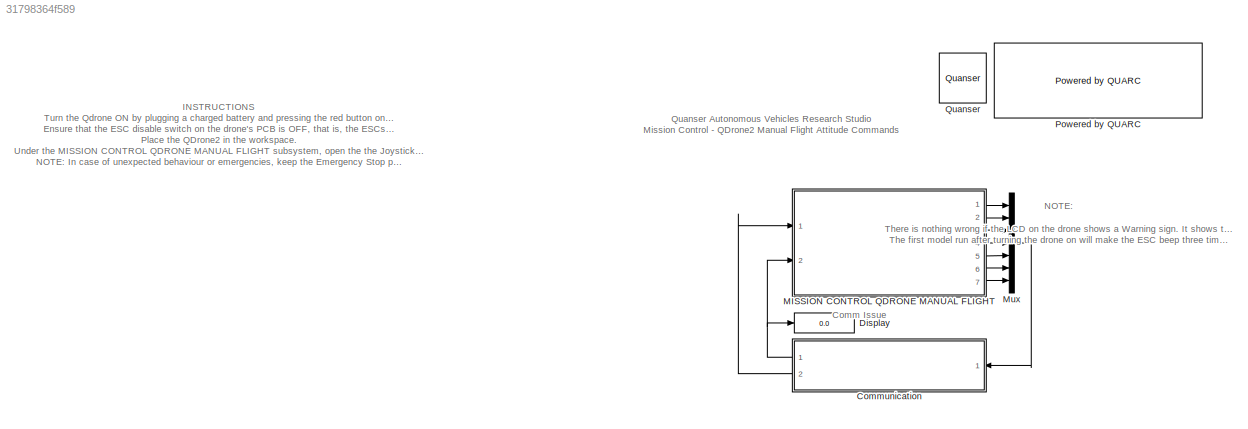
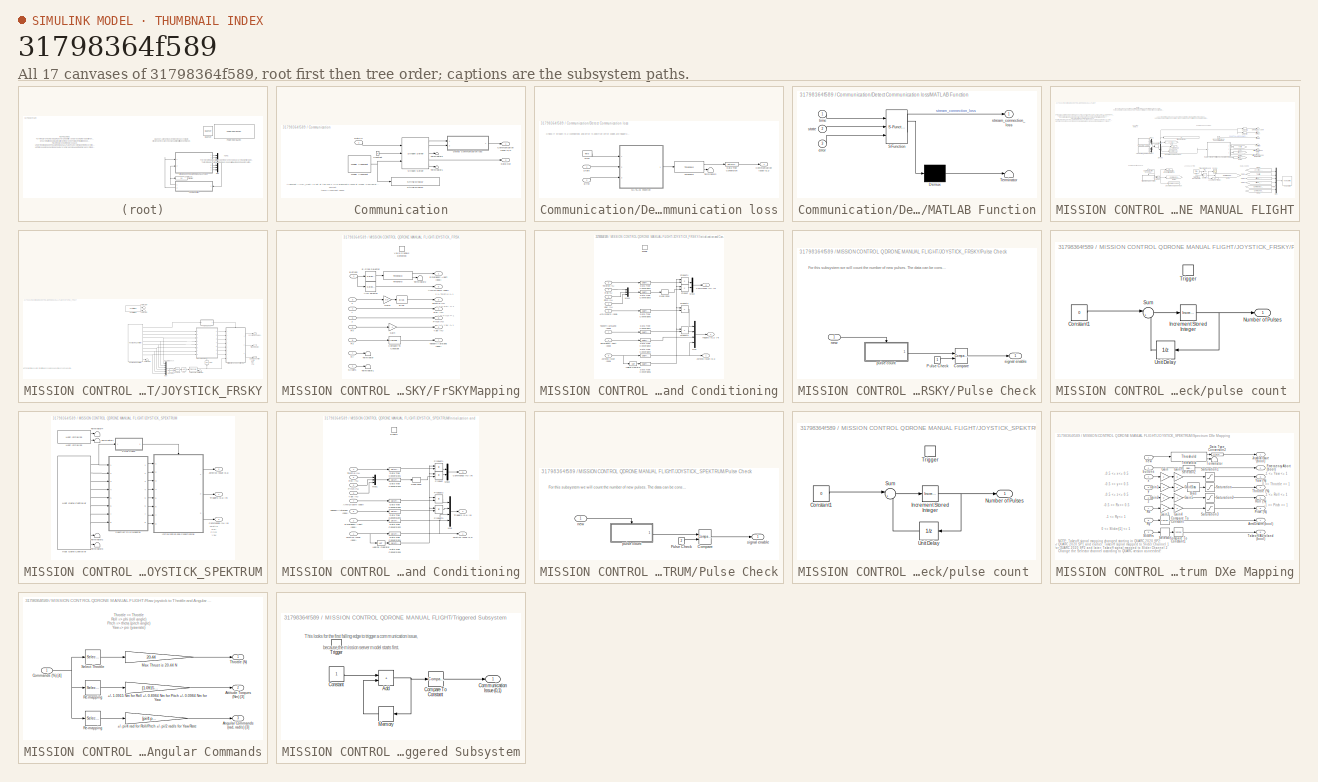
[diagram: thumbnail index - all 17 canvases of the model, root first then tree order]
MODEL slx_31798364f589
KIND model
CONFIG AbsTol = auto
CONFIG EnableMultiTasking = on
CONFIG FixedStep = 0.001
CONFIG MaxStep = auto
CONFIG MinStep = auto
CONFIG RelTol = 1e-3
CONFIG SampleTimeConstraint = Unconstrained
CONFIG SolverName = ode2
CONFIG StartTime = 0.0
CONFIG StopTime = inf
BLOCK [SubSystem] Communication
  Ports = [1, 2]
BLOCK [Outport] Communication/Communication Issue (0,1)
  VectorParamsAs1DForOutWhenUnconnected = off
BLOCK [Constant] Communication/Constant
BLOCK [Inport] Communication/Data In
BLOCK [Outport] Communication/Data Out
  Port = 2
  VectorParamsAs1DForOutWhenUnconnected = off
BLOCK [SubSystem] Communication/Detect Communication loss
  Ports = [2, 1]
BLOCK [Outport] Communication/Detect Communication loss/Communication Issue (0,1)
  VectorParamsAs1DForOutWhenUnconnected = off
BLOCK [DataTypeConversion] Communication/Detect Communication loss/Data Type Conversion
  RndMeth = Floor
  SaturateOnIntegerOverflow = off
BLOCK [Inport] Communication/Detect Communication loss/Error
  NameLocation = top
  Port = 2
BLOCK [SubSystem] Communication/Detect Communication loss/MATLAB Function
  ErrorFcn = Stateflow.Translate.translate
  PermitHierarchicalResolution = ExplicitOnly
  Ports = [3, 1]
  SFBlockType = MATLAB Function
  TreatAsAtomicUnit = on
BLOCK [Demux] Communication/Detect Communication loss/MATLAB Function/ Demux 
  Outputs = 1
  Ports = [1, 1]
BLOCK [S-Function] Communication/Detect Communication loss/MATLAB Function/ SFunction 
  EnableBusSupport = off
  FunctionName = sf_sfun
  PortCounts = [3 2]
  Ports = [3, 2]
  SFcnIsStateOwnerBlock = off
  SFunctionDeploymentMode = off
  Tag = Stateflow S-Function 3
BLOCK [Terminator] Communication/Detect Communication loss/MATLAB Function/ Terminator 
BLOCK [Inport] Communication/Detect Communication loss/MATLAB Function/error
  Port = 3
BLOCK [Inport] Communication/Detect Communication loss/MATLAB Function/state
  Port = 2
BLOCK [Outport] Communication/Detect Communication loss/MATLAB Function/stream_connection_loss
  VectorParamsAs1DForOutWhenUnconnected = off
BLOCK [Inport] Communication/Detect Communication loss/MATLAB Function/time
BLOCK [Inport] Communication/Detect Communication loss/State
  NameLocation = top
BLOCK [Terminator] Communication/Detect Communication loss/Terminator2
BLOCK [Reference] Communication/Detect Communication loss/Threshold  REF=quarc_library/Discontinuities/Threshold
  Ports = [1, 2]
  SourceBlock = quarc_library/Discontinuities/Threshold
  SourceProductName = QUARC Targets
  SourceType = Threshold
BLOCK [Reference] Communication/Detect Communication loss/Time  REF=quarc_library/Sources/Time/Time
  NameLocation = top
  Ports = [0, 1]
  SourceBlock = quarc_library/Sources/Time/Time
  SourceProductName = QUARC Targets
  SourceType = Time
BLOCK [Reference] Communication/Model Argument  REF=quarc_library/Sources/Signals/Model Argument
  AttributesFormatString = (-%<argument_name>)
  Ports = [0, 1]
  SourceBlock = quarc_library/Sources/Signals/Model Argument
  SourceProductName = QUARC Targets
  SourceType = Model Argument
BLOCK [Reference] Communication/Stream Server  REF=quarc_library/Communications/Basic/Stream Server
  Ports = [3, 5]
  SourceBlock = quarc_library/Communications/Basic/Stream Server
  SourceProductName = QUARC Targets
  SourceType = Stream Server
BLOCK [Reference] Communication/String Display   REF=quarc_library/Strings/String Display
  Ports = [1]
  SourceBlock = quarc_library/Strings/String Display
  SourceProductName = QUARC Targets
  SourceType = String Display
BLOCK [Terminator] Communication/Terminator1
BLOCK [Terminator] Communication/Terminator2
BLOCK [Display] Display
  Decimation = 1
  Ports = [1]
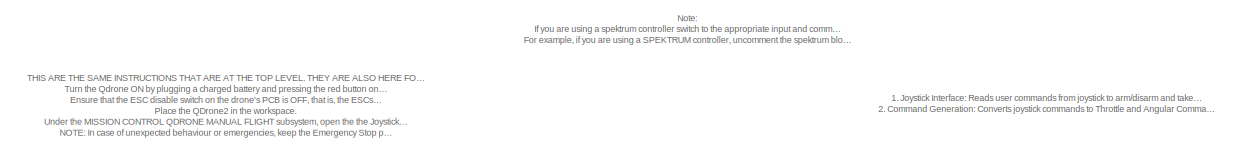
[diagram: MISSION CONTROL QDRONE MANUAL FLIGHT - part 1/2, top left region]
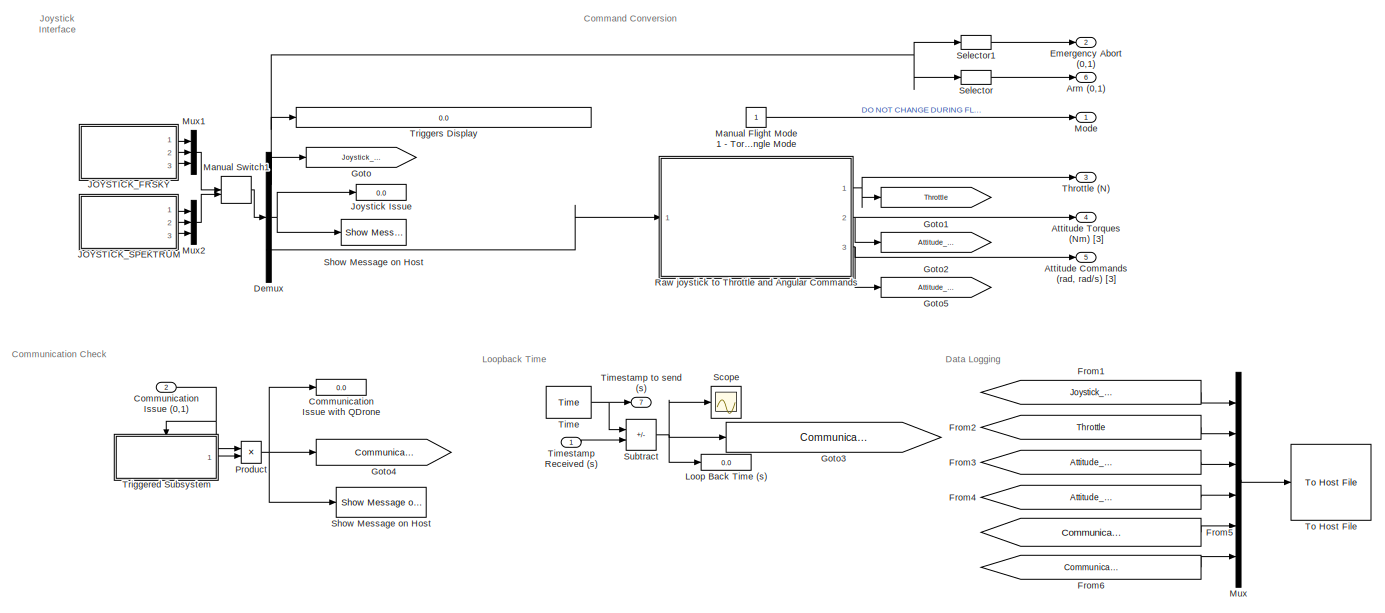
[diagram: MISSION CONTROL QDRONE MANUAL FLIGHT - part 2/2, center side, full height]
BLOCK [SubSystem] MISSION CONTROL QDRONE MANUAL FLIGHT
  Ports = [2, 7]
BLOCK [Outport] MISSION CONTROL QDRONE MANUAL FLIGHT/Arm (0,1)
  NameLocation = top
  Port = 6
  VectorParamsAs1DForOutWhenUnconnected = off
BLOCK [Outport] MISSION CONTROL QDRONE MANUAL FLIGHT/Attitude Commands (rad, rad//s) [3]
  NameLocation = top
  Port = 5
  VectorParamsAs1DForOutWhenUnconnected = off
BLOCK [Outport] MISSION CONTROL QDRONE MANUAL FLIGHT/Attitude Torques (Nm) [3]
  NameLocation = top
  Port = 4
  VectorParamsAs1DForOutWhenUnconnected = off
BLOCK [Inport] MISSION CONTROL QDRONE MANUAL FLIGHT/Communication Issue (0,1)
  Port = 2
BLOCK [Display] MISSION CONTROL QDRONE MANUAL FLIGHT/Communication Issue with QDrone
  Decimation = 1
  Ports = [1]
BLOCK [Demux] MISSION CONTROL QDRONE MANUAL FLIGHT/Demux
  Outputs = [4 1 4]
  Ports = [1, 3]
BLOCK [Outport] MISSION CONTROL QDRONE MANUAL FLIGHT/Emergency Abort (0,1)
  NameLocation = top
  Port = 2
  VectorParamsAs1DForOutWhenUnconnected = off
BLOCK [From] MISSION CONTROL QDRONE MANUAL FLIGHT/From1
  GotoTag = Joystick_Signals
BLOCK [From] MISSION CONTROL QDRONE MANUAL FLIGHT/From2
  GotoTag = Throttle
BLOCK [From] MISSION CONTROL QDRONE MANUAL FLIGHT/From3
  GotoTag = Attitude_Torque
BLOCK [From] MISSION CONTROL QDRONE MANUAL FLIGHT/From4
  GotoTag = Attitude_Angle
BLOCK [From] MISSION CONTROL QDRONE MANUAL FLIGHT/From5
  GotoTag = Communication_Loopback_Time
BLOCK [From] MISSION CONTROL QDRONE MANUAL FLIGHT/From6
  GotoTag = Communication_Status
BLOCK [Goto] MISSION CONTROL QDRONE MANUAL FLIGHT/Goto
  GotoTag = Joystick_Signals
BLOCK [Goto] MISSION CONTROL QDRONE MANUAL FLIGHT/Goto1
  GotoTag = Throttle
BLOCK [Goto] MISSION CONTROL QDRONE MANUAL FLIGHT/Goto2
  GotoTag = Attitude_Torque
BLOCK [Goto] MISSION CONTROL QDRONE MANUAL FLIGHT/Goto3
  GotoTag = Communication_Loopback_Time
BLOCK [Goto] MISSION CONTROL QDRONE MANUAL FLIGHT/Goto4
  GotoTag = Communication_Status
BLOCK [Goto] MISSION CONTROL QDRONE MANUAL FLIGHT/Goto5
  GotoTag = Attitude_Angle
BLOCK [SubSystem] MISSION CONTROL QDRONE MANUAL FLIGHT/JOYSTICK_FRSKY
  Ports = [0, 3]
BLOCK [Logic] MISSION CONTROL QDRONE MANUAL FLIGHT/JOYSTICK_FRSKY/AND
  AllPortsSameDT = off
  Inputs = 1
  OutDataTypeStr = boolean
  Ports = [1, 1]
BLOCK [Outport] MISSION CONTROL QDRONE MANUAL FLIGHT/JOYSTICK_FRSKY/Commands (%) [4]
  Port = 3
  VectorParamsAs1DForOutWhenUnconnected = off
BLOCK [Reference] MISSION CONTROL QDRONE MANUAL FLIGHT/JOYSTICK_FRSKY/Compare  REF=quarc_library/Logic Operations/Compare
  Ports = [2, 1]
  SourceBlock = quarc_library/Logic Operations/Compare
  SourceProductName = QUARC Targets
  SourceType = Compare
BLOCK [Constant] MISSION CONTROL QDRONE MANUAL FLIGHT/JOYSTICK_FRSKY/Constant
  Value = -1*ones(1,6)
BLOCK [SubSystem] MISSION CONTROL QDRONE MANUAL FLIGHT/JOYSTICK_FRSKY/FrSKYMapping
  NameLocation = top
  Ports = [8, 7, 1]
BLOCK [Selector] MISSION CONTROL QDRONE MANUAL FLIGHT/JOYSTICK_FRSKY/FrSKYMapping/Arm selector
  IndexOptions = Index vector (dialog)
  Indices = [2]
  InputPortWidth = 32
  OutputSizes = 1
  Ports = [1, 1]
BLOCK [Outport] MISSION CONTROL QDRONE MANUAL FLIGHT/JOYSTICK_FRSKY/FrSKYMapping/Arm//Disarm (bool) 
  Port = 6
  VectorParamsAs1DForOutWhenUnconnected = off
BLOCK [Bias] MISSION CONTROL QDRONE MANUAL FLIGHT/JOYSTICK_FRSKY/FrSKYMapping/Bias
  Bias = 0.5
  SaturateOnIntegerOverflow = off
BLOCK [Inport] MISSION CONTROL QDRONE MANUAL FLIGHT/JOYSTICK_FRSKY/FrSKYMapping/Buttons
BLOCK [Reference] MISSION CONTROL QDRONE MANUAL FLIGHT/JOYSTICK_FRSKY/FrSKYMapping/Compare To Constant  REF=simulink/Logic and Bit
Operations/Compare
To Constant
  Ports = [1, 1]
  SourceBlock = simulink/Logic and Bit\nOperations/Compare\nTo Constant
  SourceType = Compare To Constant
BLOCK [Selector] MISSION CONTROL QDRONE MANUAL FLIGHT/JOYSTICK_FRSKY/FrSKYMapping/E-Stop Selector
  IndexOptions = Index vector (dialog)
  Indices = [1]
  InputPortWidth = 32
  NameLocation = top
  OutputSizes = 1
  Ports = [1, 1]
BLOCK [Outport] MISSION CONTROL QDRONE MANUAL FLIGHT/JOYSTICK_FRSKY/FrSKYMapping/Emergency Abort (bool)
  VectorParamsAs1DForOutWhenUnconnected = off
BLOCK [Gain] MISSION CONTROL QDRONE MANUAL FLIGHT/JOYSTICK_FRSKY/FrSKYMapping/Gain
  Gain = -1
BLOCK [Gain] MISSION CONTROL QDRONE MANUAL FLIGHT/JOYSTICK_FRSKY/FrSKYMapping/Gain1
  Gain = 0.5
BLOCK [Outport] MISSION CONTROL QDRONE MANUAL FLIGHT/JOYSTICK_FRSKY/FrSKYMapping/Pitch (%)
  Port = 5
  VectorParamsAs1DForOutWhenUnconnected = off
BLOCK [Outport] MISSION CONTROL QDRONE MANUAL FLIGHT/JOYSTICK_FRSKY/FrSKYMapping/Roll (%)
  Port = 4
  VectorParamsAs1DForOutWhenUnconnected = off
BLOCK [Inport] MISSION CONTROL QDRONE MANUAL FLIGHT/JOYSTICK_FRSKY/FrSKYMapping/Rx
  Port = 6
BLOCK [Inport] MISSION CONTROL QDRONE MANUAL FLIGHT/JOYSTICK_FRSKY/FrSKYMapping/Ry
  Port = 7
BLOCK [Inport] MISSION CONTROL QDRONE MANUAL FLIGHT/JOYSTICK_FRSKY/FrSKYMapping/Rz
  Port = 8
BLOCK [Inport] MISSION CONTROL QDRONE MANUAL FLIGHT/JOYSTICK_FRSKY/FrSKYMapping/Sliders
  Port = 2
BLOCK [Outport] MISSION CONTROL QDRONE MANUAL FLIGHT/JOYSTICK_FRSKY/FrSKYMapping/Takeoff//Autoland (bool)
  Port = 7
  VectorParamsAs1DForOutWhenUnconnected = off
BLOCK [Terminator] MISSION CONTROL QDRONE MANUAL FLIGHT/JOYSTICK_FRSKY/FrSKYMapping/Terminator
BLOCK [Terminator] MISSION CONTROL QDRONE MANUAL FLIGHT/JOYSTICK_FRSKY/FrSKYMapping/Terminator1
BLOCK [Terminator] MISSION CONTROL QDRONE MANUAL FLIGHT/JOYSTICK_FRSKY/FrSKYMapping/Terminator2
BLOCK [Reference] MISSION CONTROL QDRONE MANUAL FLIGHT/JOYSTICK_FRSKY/FrSKYMapping/Threshold  REF=quarc_library/Discontinuities/Threshold
  Ports = [1, 2]
  SourceBlock = quarc_library/Discontinuities/Threshold
  SourceProductName = QUARC Targets
  SourceType = Threshold
BLOCK [Outport] MISSION CONTROL QDRONE MANUAL FLIGHT/JOYSTICK_FRSKY/FrSKYMapping/Throttle (%)
  Port = 3
  VectorParamsAs1DForOutWhenUnconnected = off
BLOCK [EnablePort] MISSION CONTROL QDRONE MANUAL FLIGHT/JOYSTICK_FRSKY/FrSKYMapping/Valid Signals Detected
  Ports = []
BLOCK [Outport] MISSION CONTROL QDRONE MANUAL FLIGHT/JOYSTICK_FRSKY/FrSKYMapping/Yaw (%)
  Port = 2
  VectorParamsAs1DForOutWhenUnconnected = off
BLOCK [Inport] MISSION CONTROL QDRONE MANUAL FLIGHT/JOYSTICK_FRSKY/FrSKYMapping/x
  Port = 3
BLOCK [Inport] MISSION CONTROL QDRONE MANUAL FLIGHT/JOYSTICK_FRSKY/FrSKYMapping/y
  Port = 4
BLOCK [Inport] MISSION CONTROL QDRONE MANUAL FLIGHT/JOYSTICK_FRSKY/FrSKYMapping/z
  Port = 5
BLOCK [Reference] MISSION CONTROL QDRONE MANUAL FLIGHT/JOYSTICK_FRSKY/Host Game Controller  REF=quarc_library/Devices/Peripherals/Host/Host Game Controller
  Ports = [0, 10]
  SourceBlock = quarc_library/Devices/Peripherals/Host/Host Game Controller
  SourceProductName = QUARC Targets
  SourceType = Host Game Controller
BLOCK [Reference] MISSION CONTROL QDRONE MANUAL FLIGHT/JOYSTICK_FRSKY/Host Initialize  REF=quarc_library/Devices/Peripherals/Host/Host Initialize
  Ports = [0, 2]
  SourceBlock = quarc_library/Devices/Peripherals/Host/Host Initialize
  SourceProductName = QUARC Targets
  SourceType = Host Initialize
BLOCK [SubSystem] MISSION CONTROL QDRONE MANUAL FLIGHT/JOYSTICK_FRSKY/Initialization and Conditioning
  Ports = [8, 3, 1]
  TreatAsAtomicUnit = on
BLOCK [Inport] MISSION CONTROL QDRONE MANUAL FLIGHT/JOYSTICK_FRSKY/Initialization and Conditioning/Arm//Disarm (bool)
  Port = 6
BLOCK [Outport] MISSION CONTROL QDRONE MANUAL FLIGHT/JOYSTICK_FRSKY/Initialization and Conditioning/Commands (%) [4]
  InitialOutput = 0
  NameLocation = top
  Port = 3
  VectorParamsAs1DForOutWhenUnconnected = off
BLOCK [DataTypeConversion] MISSION CONTROL QDRONE MANUAL FLIGHT/JOYSTICK_FRSKY/Initialization and Conditioning/Data Type Conversion1
  RndMeth = Floor
  SaturateOnIntegerOverflow = off
BLOCK [DataTypeConversion] MISSION CONTROL QDRONE MANUAL FLIGHT/JOYSTICK_FRSKY/Initialization and Conditioning/Data Type Conversion2
  RndMeth = Floor
  SaturateOnIntegerOverflow = off
BLOCK [DataTypeConversion] MISSION CONTROL QDRONE MANUAL FLIGHT/JOYSTICK_FRSKY/Initialization and Conditioning/Data Type Conversion3
  RndMeth = Floor
  SaturateOnIntegerOverflow = off
BLOCK [DataTypeConversion] MISSION CONTROL QDRONE MANUAL FLIGHT/JOYSTICK_FRSKY/Initialization and Conditioning/Data Type Conversion4
  RndMeth = Floor
  SaturateOnIntegerOverflow = off
BLOCK [DataTypeConversion] MISSION CONTROL QDRONE MANUAL FLIGHT/JOYSTICK_FRSKY/Initialization and Conditioning/Data Type Conversion5
  RndMeth = Floor
  SaturateOnIntegerOverflow = off
BLOCK [DataTypeConversion] MISSION CONTROL QDRONE MANUAL FLIGHT/JOYSTICK_FRSKY/Initialization and Conditioning/Data Type Conversion6
  RndMeth = Floor
  SaturateOnIntegerOverflow = off
BLOCK [DataTypeConversion] MISSION CONTROL QDRONE MANUAL FLIGHT/JOYSTICK_FRSKY/Initialization and Conditioning/Data Type Conversion7
  RndMeth = Floor
  SaturateOnIntegerOverflow = off
BLOCK [DeadZone] MISSION CONTROL QDRONE MANUAL FLIGHT/JOYSTICK_FRSKY/Initialization and Conditioning/Dead Zone
  LowerValue = -0.01
  UpperValue = 0.01
BLOCK [Inport] MISSION CONTROL QDRONE MANUAL FLIGHT/JOYSTICK_FRSKY/Initialization and Conditioning/Emergency Abort (bool)
BLOCK [EnablePort] MISSION CONTROL QDRONE MANUAL FLIGHT/JOYSTICK_FRSKY/Initialization and Conditioning/Enable
  Ports = []
  StatesWhenEnabling = reset
BLOCK [Outport] MISSION CONTROL QDRONE MANUAL FLIGHT/JOYSTICK_FRSKY/Initialization and Conditioning/Joystick Issue (0,1)
  InitialOutput = 0
  NameLocation = top
  VectorParamsAs1DForOutWhenUnconnected = off
BLOCK [Inport] MISSION CONTROL QDRONE MANUAL FLIGHT/JOYSTICK_FRSKY/Initialization and Conditioning/Joystick Issue (bool)
  Port = 8
BLOCK [Logic] MISSION CONTROL QDRONE MANUAL FLIGHT/JOYSTICK_FRSKY/Initialization and Conditioning/Logical Operator
  AllPortsSameDT = off
  Operator = NOT
  OutDataTypeStr = boolean
  Ports = [1, 1]
BLOCK [Mux] MISSION CONTROL QDRONE MANUAL FLIGHT/JOYSTICK_FRSKY/Initialization and Conditioning/Mux
  DisplayOption = bar
  Ports = [4, 1]
BLOCK [Mux] MISSION CONTROL QDRONE MANUAL FLIGHT/JOYSTICK_FRSKY/Initialization and Conditioning/Mux1
  DisplayOption = bar
  Inputs = 3
  Ports = [3, 1]
BLOCK [Mux] MISSION CONTROL QDRONE MANUAL FLIGHT/JOYSTICK_FRSKY/Initialization and Conditioning/Mux2
  DisplayOption = bar
  Inputs = 2
  Ports = [2, 1]
BLOCK [Inport] MISSION CONTROL QDRONE MANUAL FLIGHT/JOYSTICK_FRSKY/Initialization and Conditioning/Pitch (%)
  Port = 5
BLOCK [Product] MISSION CONTROL QDRONE MANUAL FLIGHT/JOYSTICK_FRSKY/Initialization and Conditioning/Product
  Ports = [2, 1]
BLOCK [Product] MISSION CONTROL QDRONE MANUAL FLIGHT/JOYSTICK_FRSKY/Initialization and Conditioning/Product1
  Ports = [2, 1]
BLOCK [Product] MISSION CONTROL QDRONE MANUAL FLIGHT/JOYSTICK_FRSKY/Initialization and Conditioning/Product2
  Ports = [2, 1]
BLOCK [Product] MISSION CONTROL QDRONE MANUAL FLIGHT/JOYSTICK_FRSKY/Initialization and Conditioning/Product3
  Ports = [2, 1]
BLOCK [Inport] MISSION CONTROL QDRONE MANUAL FLIGHT/JOYSTICK_FRSKY/Initialization and Conditioning/Roll (%)
  Port = 4
BLOCK [Inport] MISSION CONTROL QDRONE MANUAL FLIGHT/JOYSTICK_FRSKY/Initialization and Conditioning/Takeoff//AutoLand (bool)
  Port = 7
BLOCK [Inport] MISSION CONTROL QDRONE MANUAL FLIGHT/JOYSTICK_FRSKY/Initialization and Conditioning/Throttle (%)
  Port = 3
BLOCK [Outport] MISSION CONTROL QDRONE MANUAL FLIGHT/JOYSTICK_FRSKY/Initialization and Conditioning/Triggers (0,1) [4]
  InitialOutput = 0
  NameLocation = top
  Port = 2
  VectorParamsAs1DForOutWhenUnconnected = off
BLOCK [Inport] MISSION CONTROL QDRONE MANUAL FLIGHT/JOYSTICK_FRSKY/Initialization and Conditioning/Yaw (%)
  Port = 2
BLOCK [Outport] MISSION CONTROL QDRONE MANUAL FLIGHT/JOYSTICK_FRSKY/Joystick Issue (0,1)
  Port = 2
  VectorParamsAs1DForOutWhenUnconnected = off
BLOCK [Mux] MISSION CONTROL QDRONE MANUAL FLIGHT/JOYSTICK_FRSKY/Mux
  DisplayOption = bar
  Inputs = 6
  Ports = [6, 1]
BLOCK [Logic] MISSION CONTROL QDRONE MANUAL FLIGHT/JOYSTICK_FRSKY/NOT
  AllPortsSameDT = off
  IconShape = distinctive
  NameLocation = right
  Operator = NOT
  OutDataTypeStr = boolean
  Ports = [1, 1]
BLOCK [SubSystem] MISSION CONTROL QDRONE MANUAL FLIGHT/JOYSTICK_FRSKY/Pulse Check
  NameLocation = top
  Ports = [1, 1]
  TreatAsAtomicUnit = on
BLOCK [Reference] MISSION CONTROL QDRONE MANUAL FLIGHT/JOYSTICK_FRSKY/Pulse Check/Compare  REF=quarc_library/Logic Operations/Compare
  Ports = [2, 1]
  SourceBlock = quarc_library/Logic Operations/Compare
  SourceProductName = QUARC Targets
  SourceType = Compare
BLOCK [Constant] MISSION CONTROL QDRONE MANUAL FLIGHT/JOYSTICK_FRSKY/Pulse Check/Pulse Check
BLOCK [Inport] MISSION CONTROL QDRONE MANUAL FLIGHT/JOYSTICK_FRSKY/Pulse Check/new
BLOCK [SubSystem] MISSION CONTROL QDRONE MANUAL FLIGHT/JOYSTICK_FRSKY/Pulse Check/pulse count 
  Ports = [0, 1, 0, 1]
  TreatAsAtomicUnit = on
BLOCK [Constant] MISSION CONTROL QDRONE MANUAL FLIGHT/JOYSTICK_FRSKY/Pulse Check/pulse count /Constant1
  Value = 0
BLOCK [Reference] MISSION CONTROL QDRONE MANUAL FLIGHT/JOYSTICK_FRSKY/Pulse Check/pulse count /Increment Stored Integer  REF=simulink/Additional Math
& Discrete/Additional Math:
Increment - Decrement/Increment
Stored Integer
  Ports = [1, 1]
  SourceBlock = simulink/Additional Math\n& Discrete/Additional Math:\nIncrement - Decrement/Increment\nStored Integer
  SourceType = Stored Integer Value Increment
BLOCK [Outport] MISSION CONTROL QDRONE MANUAL FLIGHT/JOYSTICK_FRSKY/Pulse Check/pulse count /Number of Pulses
  VectorParamsAs1DForOutWhenUnconnected = off
BLOCK [Sum] MISSION CONTROL QDRONE MANUAL FLIGHT/JOYSTICK_FRSKY/Pulse Check/pulse count /Sum
  Inputs = |++
  Ports = [2, 1]
BLOCK [TriggerPort] MISSION CONTROL QDRONE MANUAL FLIGHT/JOYSTICK_FRSKY/Pulse Check/pulse count /Trigger
  Ports = []
  StatesWhenEnabling = held
  VariantControl = Variant
BLOCK [UnitDelay] MISSION CONTROL QDRONE MANUAL FLIGHT/JOYSTICK_FRSKY/Pulse Check/pulse count /Unit Delay
  HasFrameUpgradeWarning = on
  NameLocation = top
  SampleTime = -1
BLOCK [Outport] MISSION CONTROL QDRONE MANUAL FLIGHT/JOYSTICK_FRSKY/Pulse Check/signal enable
  InitialOutput = 0
  VectorParamsAs1DForOutWhenUnconnected = off
BLOCK [Terminator] MISSION CONTROL QDRONE MANUAL FLIGHT/JOYSTICK_FRSKY/Terminator
BLOCK [Terminator] MISSION CONTROL QDRONE MANUAL FLIGHT/JOYSTICK_FRSKY/Terminator1
BLOCK [Terminator] MISSION CONTROL QDRONE MANUAL FLIGHT/JOYSTICK_FRSKY/Terminator2
BLOCK [Terminator] MISSION CONTROL QDRONE MANUAL FLIGHT/JOYSTICK_FRSKY/Terminator4
BLOCK [Reference] MISSION CONTROL QDRONE MANUAL FLIGHT/JOYSTICK_FRSKY/Threshold  REF=quarc_library/Discontinuities/Threshold
  Ports = [1, 2]
  SourceBlock = quarc_library/Discontinuities/Threshold
  SourceProductName = QUARC Targets
  SourceType = Threshold
BLOCK [Outport] MISSION CONTROL QDRONE MANUAL FLIGHT/JOYSTICK_FRSKY/Triggers (0,1) [4]
  VectorParamsAs1DForOutWhenUnconnected = off
BLOCK [SubSystem] MISSION CONTROL QDRONE MANUAL FLIGHT/JOYSTICK_SPEKTRUM
  Commented = on
  Ports = [0, 3]
BLOCK [Outport] MISSION CONTROL QDRONE MANUAL FLIGHT/JOYSTICK_SPEKTRUM/Commands (%) [4]
  Port = 3
  VectorParamsAs1DForOutWhenUnconnected = off
BLOCK [Reference] MISSION CONTROL QDRONE MANUAL FLIGHT/JOYSTICK_SPEKTRUM/Host Game Controller  REF=quarc_library/Devices/Peripherals/Host/Host Game Controller
  Ports = [0, 10]
  SourceBlock = quarc_library/Devices/Peripherals/Host/Host Game Controller
  SourceProductName = QUARC Targets
  SourceType = Host Game Controller
BLOCK [Reference] MISSION CONTROL QDRONE MANUAL FLIGHT/JOYSTICK_SPEKTRUM/Host Initialize  REF=quarc_library/Devices/Peripherals/Host/Host Initialize
  Ports = [0, 2]
  SourceBlock = quarc_library/Devices/Peripherals/Host/Host Initialize
  SourceProductName = QUARC Targets
  SourceType = Host Initialize
BLOCK [SubSystem] MISSION CONTROL QDRONE MANUAL FLIGHT/JOYSTICK_SPEKTRUM/Initialization and Conditioning
  Ports = [8, 3, 1]
  TreatAsAtomicUnit = on
BLOCK [Inport] MISSION CONTROL QDRONE MANUAL FLIGHT/JOYSTICK_SPEKTRUM/Initialization and Conditioning/Arm//Disarm (bool)
  Port = 7
BLOCK [Outport] MISSION CONTROL QDRONE MANUAL FLIGHT/JOYSTICK_SPEKTRUM/Initialization and Conditioning/Commands (%) [4]
  InitialOutput = 0
  NameLocation = top
  Port = 3
  VectorParamsAs1DForOutWhenUnconnected = off
BLOCK [DataTypeConversion] MISSION CONTROL QDRONE MANUAL FLIGHT/JOYSTICK_SPEKTRUM/Initialization and Conditioning/Data Type Conversion1
  RndMeth = Floor
  SaturateOnIntegerOverflow = off
BLOCK [DataTypeConversion] MISSION CONTROL QDRONE MANUAL FLIGHT/JOYSTICK_SPEKTRUM/Initialization and Conditioning/Data Type Conversion2
  RndMeth = Floor
  SaturateOnIntegerOverflow = off
BLOCK [DataTypeConversion] MISSION CONTROL QDRONE MANUAL FLIGHT/JOYSTICK_SPEKTRUM/Initialization and Conditioning/Data Type Conversion3
  RndMeth = Floor
  SaturateOnIntegerOverflow = off
BLOCK [DataTypeConversion] MISSION CONTROL QDRONE MANUAL FLIGHT/JOYSTICK_SPEKTRUM/Initialization and Conditioning/Data Type Conversion4
  RndMeth = Floor
  SaturateOnIntegerOverflow = off
BLOCK [DataTypeConversion] MISSION CONTROL QDRONE MANUAL FLIGHT/JOYSTICK_SPEKTRUM/Initialization and Conditioning/Data Type Conversion5
  RndMeth = Floor
  SaturateOnIntegerOverflow = off
BLOCK [DataTypeConversion] MISSION CONTROL QDRONE MANUAL FLIGHT/JOYSTICK_SPEKTRUM/Initialization and Conditioning/Data Type Conversion6
  RndMeth = Floor
  SaturateOnIntegerOverflow = off
BLOCK [DataTypeConversion] MISSION CONTROL QDRONE MANUAL FLIGHT/JOYSTICK_SPEKTRUM/Initialization and Conditioning/Data Type Conversion7
  RndMeth = Floor
  SaturateOnIntegerOverflow = off
BLOCK [DeadZone] MISSION CONTROL QDRONE MANUAL FLIGHT/JOYSTICK_SPEKTRUM/Initialization and Conditioning/Dead Zone
  LowerValue = -0.01
  UpperValue = 0.01
BLOCK [Inport] MISSION CONTROL QDRONE MANUAL FLIGHT/JOYSTICK_SPEKTRUM/Initialization and Conditioning/Emergency Abort (bool)
  Port = 2
BLOCK [EnablePort] MISSION CONTROL QDRONE MANUAL FLIGHT/JOYSTICK_SPEKTRUM/Initialization and Conditioning/Enable
  Ports = []
  StatesWhenEnabling = reset
BLOCK [Outport] MISSION CONTROL QDRONE MANUAL FLIGHT/JOYSTICK_SPEKTRUM/Initialization and Conditioning/Joystick Issue (0,1)
  InitialOutput = 0
  NameLocation = top
  VectorParamsAs1DForOutWhenUnconnected = off
BLOCK [Inport] MISSION CONTROL QDRONE MANUAL FLIGHT/JOYSTICK_SPEKTRUM/Initialization and Conditioning/Joystick Issue (bool)
BLOCK [Logic] MISSION CONTROL QDRONE MANUAL FLIGHT/JOYSTICK_SPEKTRUM/Initialization and Conditioning/Logical Operator
  AllPortsSameDT = off
  Operator = NOT
  OutDataTypeStr = boolean
  Ports = [1, 1]
BLOCK [Mux] MISSION CONTROL QDRONE MANUAL FLIGHT/JOYSTICK_SPEKTRUM/Initialization and Conditioning/Mux
  DisplayOption = bar
  Ports = [4, 1]
BLOCK [Mux] MISSION CONTROL QDRONE MANUAL FLIGHT/JOYSTICK_SPEKTRUM/Initialization and Conditioning/Mux1
  DisplayOption = bar
  Inputs = 3
  Ports = [3, 1]
BLOCK [Mux] MISSION CONTROL QDRONE MANUAL FLIGHT/JOYSTICK_SPEKTRUM/Initialization and Conditioning/Mux2
  DisplayOption = bar
  Inputs = 2
  Ports = [2, 1]
BLOCK [Inport] MISSION CONTROL QDRONE MANUAL FLIGHT/JOYSTICK_SPEKTRUM/Initialization and Conditioning/Pitch (%)
  Port = 6
BLOCK [Product] MISSION CONTROL QDRONE MANUAL FLIGHT/JOYSTICK_SPEKTRUM/Initialization and Conditioning/Product
  Ports = [2, 1]
BLOCK [Product] MISSION CONTROL QDRONE MANUAL FLIGHT/JOYSTICK_SPEKTRUM/Initialization and Conditioning/Product1
  Ports = [2, 1]
BLOCK [Product] MISSION CONTROL QDRONE MANUAL FLIGHT/JOYSTICK_SPEKTRUM/Initialization and Conditioning/Product2
  Ports = [2, 1]
BLOCK [Product] MISSION CONTROL QDRONE MANUAL FLIGHT/JOYSTICK_SPEKTRUM/Initialization and Conditioning/Product3
  Ports = [2, 1]
BLOCK [Inport] MISSION CONTROL QDRONE MANUAL FLIGHT/JOYSTICK_SPEKTRUM/Initialization and Conditioning/Roll (%)
  Port = 5
BLOCK [Inport] MISSION CONTROL QDRONE MANUAL FLIGHT/JOYSTICK_SPEKTRUM/Initialization and Conditioning/Takeoff//AutoLand (bool)
  Port = 8
BLOCK [Inport] MISSION CONTROL QDRONE MANUAL FLIGHT/JOYSTICK_SPEKTRUM/Initialization and Conditioning/Throttle (%)
  Port = 4
BLOCK [Outport] MISSION CONTROL QDRONE MANUAL FLIGHT/JOYSTICK_SPEKTRUM/Initialization and Conditioning/Triggers (0,1) [4]
  InitialOutput = 0
  NameLocation = top
  Port = 2
  VectorParamsAs1DForOutWhenUnconnected = off
BLOCK [Inport] MISSION CONTROL QDRONE MANUAL FLIGHT/JOYSTICK_SPEKTRUM/Initialization and Conditioning/Yaw (%)
  Port = 3
BLOCK [Outport] MISSION CONTROL QDRONE MANUAL FLIGHT/JOYSTICK_SPEKTRUM/Joystick Issue (0,1)
  Port = 2
  VectorParamsAs1DForOutWhenUnconnected = off
BLOCK [SubSystem] MISSION CONTROL QDRONE MANUAL FLIGHT/JOYSTICK_SPEKTRUM/Pulse Check
  Ports = [1, 1]
  TreatAsAtomicUnit = on
BLOCK [Reference] MISSION CONTROL QDRONE MANUAL FLIGHT/JOYSTICK_SPEKTRUM/Pulse Check/Compare  REF=quarc_library/Logic Operations/Compare
  Ports = [2, 1]
  SourceBlock = quarc_library/Logic Operations/Compare
  SourceProductName = QUARC Targets
  SourceType = Compare
BLOCK [Constant] MISSION CONTROL QDRONE MANUAL FLIGHT/JOYSTICK_SPEKTRUM/Pulse Check/Pulse Check
  Value = 2
BLOCK [Inport] MISSION CONTROL QDRONE MANUAL FLIGHT/JOYSTICK_SPEKTRUM/Pulse Check/new
BLOCK [SubSystem] MISSION CONTROL QDRONE MANUAL FLIGHT/JOYSTICK_SPEKTRUM/Pulse Check/pulse count 
  Ports = [0, 1, 0, 1]
  TreatAsAtomicUnit = on
BLOCK [Constant] MISSION CONTROL QDRONE MANUAL FLIGHT/JOYSTICK_SPEKTRUM/Pulse Check/pulse count /Constant1
  Value = 0
BLOCK [Reference] MISSION CONTROL QDRONE MANUAL FLIGHT/JOYSTICK_SPEKTRUM/Pulse Check/pulse count /Increment Stored Integer  REF=simulink/Additional Math
& Discrete/Additional Math:
Increment - Decrement/Increment
Stored Integer
  Ports = [1, 1]
  SourceBlock = simulink/Additional Math\n& Discrete/Additional Math:\nIncrement - Decrement/Increment\nStored Integer
  SourceType = Stored Integer Value Increment
BLOCK [Outport] MISSION CONTROL QDRONE MANUAL FLIGHT/JOYSTICK_SPEKTRUM/Pulse Check/pulse count /Number of Pulses
  VectorParamsAs1DForOutWhenUnconnected = off
BLOCK [Sum] MISSION CONTROL QDRONE MANUAL FLIGHT/JOYSTICK_SPEKTRUM/Pulse Check/pulse count /Sum
  Inputs = |++
  Ports = [2, 1]
BLOCK [TriggerPort] MISSION CONTROL QDRONE MANUAL FLIGHT/JOYSTICK_SPEKTRUM/Pulse Check/pulse count /Trigger
  Ports = []
  StatesWhenEnabling = held
  VariantControl = Variant
BLOCK [UnitDelay] MISSION CONTROL QDRONE MANUAL FLIGHT/JOYSTICK_SPEKTRUM/Pulse Check/pulse count /Unit Delay
  HasFrameUpgradeWarning = on
  NameLocation = top
  SampleTime = -1
BLOCK [Outport] MISSION CONTROL QDRONE MANUAL FLIGHT/JOYSTICK_SPEKTRUM/Pulse Check/signal enable
  InitialOutput = 0
  VectorParamsAs1DForOutWhenUnconnected = off
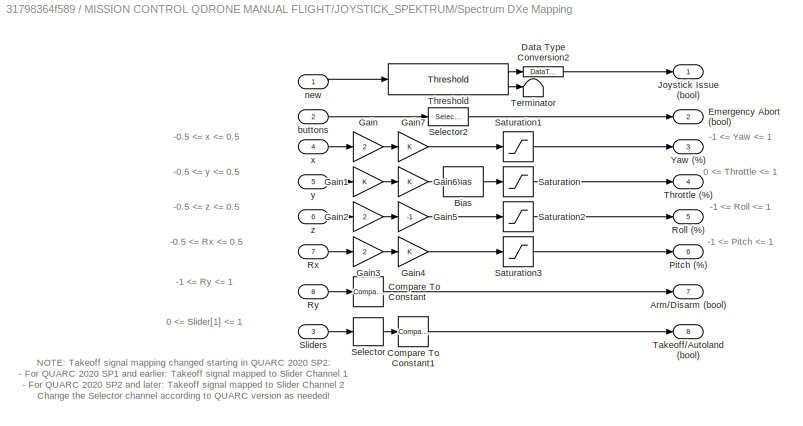
BLOCK [SubSystem] MISSION CONTROL QDRONE MANUAL FLIGHT/JOYSTICK_SPEKTRUM/Spectrum DXe Mapping
  Ports = [8, 8]
BLOCK [Outport] MISSION CONTROL QDRONE MANUAL FLIGHT/JOYSTICK_SPEKTRUM/Spectrum DXe Mapping/Arm//Disarm (bool) 
  Port = 7
  VectorParamsAs1DForOutWhenUnconnected = off
BLOCK [Bias] MISSION CONTROL QDRONE MANUAL FLIGHT/JOYSTICK_SPEKTRUM/Spectrum DXe Mapping/Bias
  Bias = 0.5
  SaturateOnIntegerOverflow = off
BLOCK [Reference] MISSION CONTROL QDRONE MANUAL FLIGHT/JOYSTICK_SPEKTRUM/Spectrum DXe Mapping/Compare To Constant  REF=simulink/Logic and Bit
Operations/Compare
To Constant
  Ports = [1, 1]
  SourceBlock = simulink/Logic and Bit\nOperations/Compare\nTo Constant
  SourceType = Compare To Constant
BLOCK [Reference] MISSION CONTROL QDRONE MANUAL FLIGHT/JOYSTICK_SPEKTRUM/Spectrum DXe Mapping/Compare To Constant1  REF=simulink/Logic and Bit
Operations/Compare
To Constant
  Ports = [1, 1]
  SourceBlock = simulink/Logic and Bit\nOperations/Compare\nTo Constant
  SourceType = Compare To Constant
BLOCK [DataTypeConversion] MISSION CONTROL QDRONE MANUAL FLIGHT/JOYSTICK_SPEKTRUM/Spectrum DXe Mapping/Data Type Conversion2
  RndMeth = Floor
  SaturateOnIntegerOverflow = off
BLOCK [Outport] MISSION CONTROL QDRONE MANUAL FLIGHT/JOYSTICK_SPEKTRUM/Spectrum DXe Mapping/Emergency Abort (bool)
  Port = 2
  VectorParamsAs1DForOutWhenUnconnected = off
BLOCK [Gain] MISSION CONTROL QDRONE MANUAL FLIGHT/JOYSTICK_SPEKTRUM/Spectrum DXe Mapping/Gain
  Gain = 2
BLOCK [Gain] MISSION CONTROL QDRONE MANUAL FLIGHT/JOYSTICK_SPEKTRUM/Spectrum DXe Mapping/Gain1
BLOCK [Gain] MISSION CONTROL QDRONE MANUAL FLIGHT/JOYSTICK_SPEKTRUM/Spectrum DXe Mapping/Gain2
  Gain = 2
BLOCK [Gain] MISSION CONTROL QDRONE MANUAL FLIGHT/JOYSTICK_SPEKTRUM/Spectrum DXe Mapping/Gain3
  Gain = 2
BLOCK [Gain] MISSION CONTROL QDRONE MANUAL FLIGHT/JOYSTICK_SPEKTRUM/Spectrum DXe Mapping/Gain4
BLOCK [Gain] MISSION CONTROL QDRONE MANUAL FLIGHT/JOYSTICK_SPEKTRUM/Spectrum DXe Mapping/Gain5
  Gain = -1
BLOCK [Gain] MISSION CONTROL QDRONE MANUAL FLIGHT/JOYSTICK_SPEKTRUM/Spectrum DXe Mapping/Gain6
BLOCK [Gain] MISSION CONTROL QDRONE MANUAL FLIGHT/JOYSTICK_SPEKTRUM/Spectrum DXe Mapping/Gain7
BLOCK [Outport] MISSION CONTROL QDRONE MANUAL FLIGHT/JOYSTICK_SPEKTRUM/Spectrum DXe Mapping/Joystick Issue (bool)
  VectorParamsAs1DForOutWhenUnconnected = off
BLOCK [Outport] MISSION CONTROL QDRONE MANUAL FLIGHT/JOYSTICK_SPEKTRUM/Spectrum DXe Mapping/Pitch (%)
  Port = 6
  VectorParamsAs1DForOutWhenUnconnected = off
BLOCK [Outport] MISSION CONTROL QDRONE MANUAL FLIGHT/JOYSTICK_SPEKTRUM/Spectrum DXe Mapping/Roll (%)
  Port = 5
  VectorParamsAs1DForOutWhenUnconnected = off
BLOCK [Inport] MISSION CONTROL QDRONE MANUAL FLIGHT/JOYSTICK_SPEKTRUM/Spectrum DXe Mapping/Rx
  Port = 7
BLOCK [Inport] MISSION CONTROL QDRONE MANUAL FLIGHT/JOYSTICK_SPEKTRUM/Spectrum DXe Mapping/Ry
  Port = 8
BLOCK [Saturate] MISSION CONTROL QDRONE MANUAL FLIGHT/JOYSTICK_SPEKTRUM/Spectrum DXe Mapping/Saturation
  LowerLimit = 0
  UpperLimit = 1
BLOCK [Saturate] MISSION CONTROL QDRONE MANUAL FLIGHT/JOYSTICK_SPEKTRUM/Spectrum DXe Mapping/Saturation1
  LowerLimit = -1
  UpperLimit = 1
BLOCK [Saturate] MISSION CONTROL QDRONE MANUAL FLIGHT/JOYSTICK_SPEKTRUM/Spectrum DXe Mapping/Saturation2
  LowerLimit = -1
  UpperLimit = 1
BLOCK [Saturate] MISSION CONTROL QDRONE MANUAL FLIGHT/JOYSTICK_SPEKTRUM/Spectrum DXe Mapping/Saturation3
  LowerLimit = -1
  UpperLimit = 1
BLOCK [Selector] MISSION CONTROL QDRONE MANUAL FLIGHT/JOYSTICK_SPEKTRUM/Spectrum DXe Mapping/Selector
  IndexOptions = Index vector (dialog)
  Indices = [2]
  InputPortWidth = 2
  OutputSizes = 1
  Ports = [1, 1]
BLOCK [Selector] MISSION CONTROL QDRONE MANUAL FLIGHT/JOYSTICK_SPEKTRUM/Spectrum DXe Mapping/Selector2
  IndexOptions = Index vector (dialog)
  Indices = [1]
  InputPortWidth = 32
  NameLocation = top
  OutputSizes = 1
  Ports = [1, 1]
BLOCK [Inport] MISSION CONTROL QDRONE MANUAL FLIGHT/JOYSTICK_SPEKTRUM/Spectrum DXe Mapping/Sliders
  Port = 3
BLOCK [Outport] MISSION CONTROL QDRONE MANUAL FLIGHT/JOYSTICK_SPEKTRUM/Spectrum DXe Mapping/Takeoff//Autoland (bool)
  Port = 8
  VectorParamsAs1DForOutWhenUnconnected = off
BLOCK [Terminator] MISSION CONTROL QDRONE MANUAL FLIGHT/JOYSTICK_SPEKTRUM/Spectrum DXe Mapping/Terminator
BLOCK [Reference] MISSION CONTROL QDRONE MANUAL FLIGHT/JOYSTICK_SPEKTRUM/Spectrum DXe Mapping/Threshold  REF=quarc_library/Discontinuities/Threshold
  Ports = [1, 2]
  SourceBlock = quarc_library/Discontinuities/Threshold
  SourceProductName = QUARC Targets
  SourceType = Threshold
BLOCK [Outport] MISSION CONTROL QDRONE MANUAL FLIGHT/JOYSTICK_SPEKTRUM/Spectrum DXe Mapping/Throttle (%)
  Port = 4
  VectorParamsAs1DForOutWhenUnconnected = off
BLOCK [Outport] MISSION CONTROL QDRONE MANUAL FLIGHT/JOYSTICK_SPEKTRUM/Spectrum DXe Mapping/Yaw (%)
  Port = 3
  VectorParamsAs1DForOutWhenUnconnected = off
BLOCK [Inport] MISSION CONTROL QDRONE MANUAL FLIGHT/JOYSTICK_SPEKTRUM/Spectrum DXe Mapping/buttons
  Port = 2
BLOCK [Inport] MISSION CONTROL QDRONE MANUAL FLIGHT/JOYSTICK_SPEKTRUM/Spectrum DXe Mapping/new
BLOCK [Inport] MISSION CONTROL QDRONE MANUAL FLIGHT/JOYSTICK_SPEKTRUM/Spectrum DXe Mapping/x
  Port = 4
BLOCK [Inport] MISSION CONTROL QDRONE MANUAL FLIGHT/JOYSTICK_SPEKTRUM/Spectrum DXe Mapping/y
  Port = 5
BLOCK [Inport] MISSION CONTROL QDRONE MANUAL FLIGHT/JOYSTICK_SPEKTRUM/Spectrum DXe Mapping/z
  Port = 6
BLOCK [Terminator] MISSION CONTROL QDRONE MANUAL FLIGHT/JOYSTICK_SPEKTRUM/Terminator1
BLOCK [Terminator] MISSION CONTROL QDRONE MANUAL FLIGHT/JOYSTICK_SPEKTRUM/Terminator2
BLOCK [Terminator] MISSION CONTROL QDRONE MANUAL FLIGHT/JOYSTICK_SPEKTRUM/Terminator3
BLOCK [Terminator] MISSION CONTROL QDRONE MANUAL FLIGHT/JOYSTICK_SPEKTRUM/Terminator4
BLOCK [Outport] MISSION CONTROL QDRONE MANUAL FLIGHT/JOYSTICK_SPEKTRUM/Triggers (0,1) [4]
  VectorParamsAs1DForOutWhenUnconnected = off
BLOCK [Display] MISSION CONTROL QDRONE MANUAL FLIGHT/Joystick Issue
  Decimation = 1
  Ports = [1]
BLOCK [Display] MISSION CONTROL QDRONE MANUAL FLIGHT/Loop Back Time (s)
  Decimation = 1
  Ports = [1]
BLOCK [Constant] MISSION CONTROL QDRONE MANUAL FLIGHT/Manual Flight Mode 1 - Torque Mode,   0 - Angle Mode
  NameLocation = top
BLOCK [ManualSwitch] MISSION CONTROL QDRONE MANUAL FLIGHT/Manual Switch1
BLOCK [Outport] MISSION CONTROL QDRONE MANUAL FLIGHT/Mode
  NameLocation = top
  VectorParamsAs1DForOutWhenUnconnected = off
BLOCK [Mux] MISSION CONTROL QDRONE MANUAL FLIGHT/Mux
  DisplayOption = bar
  Inputs = 6
  Ports = [6, 1]
BLOCK [Mux] MISSION CONTROL QDRONE MANUAL FLIGHT/Mux1
  DisplayOption = bar
  Inputs = [4 1 4]
  Ports = [3, 1]
BLOCK [Mux] MISSION CONTROL QDRONE MANUAL FLIGHT/Mux2
  DisplayOption = bar
  Inputs = [4 1 4]
  Ports = [3, 1]
BLOCK [Product] MISSION CONTROL QDRONE MANUAL FLIGHT/Product
  Ports = [2, 1]
BLOCK [SubSystem] MISSION CONTROL QDRONE MANUAL FLIGHT/Raw joystick to Throttle and Angular Commands
  Ports = [1, 3]
BLOCK [Selector] MISSION CONTROL QDRONE MANUAL FLIGHT/Raw joystick to Throttle and Angular Commands/ Re-mapping 
  IndexOptions = Index vector (dialog)
  Indices = [2 3 4]
  InputPortWidth = 4
  OutputSizes = 1
  Ports = [1, 1]
BLOCK [Gain] MISSION CONTROL QDRONE MANUAL FLIGHT/Raw joystick to Throttle and Angular Commands/+//- 1.0915 Nm for Roll +//- 0.8984 Nm for Pitch +//- 0.0984 Nm for Yaw
  Gain = [1.0915 0.8984 0.0984]
BLOCK [Gain] MISSION CONTROL QDRONE MANUAL FLIGHT/Raw joystick to Throttle and Angular Commands/+//- pi//4 rad for Roll//Pitch +//- pi//2 rad//s for Yaw Rate
  Gain = [pi/4 pi/4 pi/2]
BLOCK [Outport] MISSION CONTROL QDRONE MANUAL FLIGHT/Raw joystick to Throttle and Angular Commands/Angular Commands (rad, rad//s) [3]
  Port = 3
  VectorParamsAs1DForOutWhenUnconnected = off
BLOCK [Outport] MISSION CONTROL QDRONE MANUAL FLIGHT/Raw joystick to Throttle and Angular Commands/Attitude Torques (Nm) [3]
  Port = 2
  VectorParamsAs1DForOutWhenUnconnected = off
BLOCK [Inport] MISSION CONTROL QDRONE MANUAL FLIGHT/Raw joystick to Throttle and Angular Commands/Commands (%) [4]
BLOCK [Gain] MISSION CONTROL QDRONE MANUAL FLIGHT/Raw joystick to Throttle and Angular Commands/Max Thrust is 20.44 N
  Gain = 20.44
BLOCK [Selector] MISSION CONTROL QDRONE MANUAL FLIGHT/Raw joystick to Throttle and Angular Commands/Re-mapping
  IndexOptions = Index vector (dialog)
  Indices = [2 3 4]
  InputPortWidth = 4
  OutputSizes = 1
  Ports = [1, 1]
BLOCK [Selector] MISSION CONTROL QDRONE MANUAL FLIGHT/Raw joystick to Throttle and Angular Commands/Select Throttle
  IndexOptions = Index vector (dialog)
  Indices = [1]
  InputPortWidth = 4
  OutputSizes = 1
  Ports = [1, 1]
BLOCK [Outport] MISSION CONTROL QDRONE MANUAL FLIGHT/Raw joystick to Throttle and Angular Commands/Throttle (N)
  VectorParamsAs1DForOutWhenUnconnected = off
BLOCK [Scope] MISSION CONTROL QDRONE MANUAL FLIGHT/Scope
  Floating = off
  NumInputPorts = 1
  Ports = [1]
  ScopeSpecificationString = Simulink.scopes.TimeScopeBlockCfg('CurrentConfiguration', extmgr.ConfigurationSet(extmgr.Configuration('Core','General UI',true),extmgr.Configuration('Core','Source UI',true),extmgr.Configuration('Sources','WiredSimulink',true),extmgr.Configuration('Visuals','Time Domain',true,'SerializedDisplays',{struct('MinYLimReal','-1.24952','MaxYLimReal','11.25025','YLabelReal','','MinYLimMag','0.00000','Max...<+1381ch>
BLOCK [Selector] MISSION CONTROL QDRONE MANUAL FLIGHT/Selector
  IndexOptions = Index vector (dialog)
  Indices = [1]
  InputPortWidth = 4
  OutputSizes = 1
  Ports = [1, 1]
BLOCK [Selector] MISSION CONTROL QDRONE MANUAL FLIGHT/Selector1
  IndexOptions = Index vector (dialog)
  Indices = [3]
  InputPortWidth = 4
  OutputSizes = 1
  Ports = [1, 1]
BLOCK [Reference] MISSION CONTROL QDRONE MANUAL FLIGHT/Show Message on Host  REF=quarc_library/Sinks/Error Handling/Show Message on Host
  AttributesFormatString = "%<message>"
  Ports = [1]
  SourceBlock = quarc_library/Sinks/Error Handling/Show Message on Host
  SourceProductName = QUARC Targets
  SourceType = Host Show Message
BLOCK [Reference] MISSION CONTROL QDRONE MANUAL FLIGHT/Show Message on Host   REF=quarc_library/Sinks/Error Handling/Show Message on Host
  AttributesFormatString = "%<message>"
  Ports = [1]
  SourceBlock = quarc_library/Sinks/Error Handling/Show Message on Host
  SourceProductName = QUARC Targets
  SourceType = Host Show Message
BLOCK [Sum] MISSION CONTROL QDRONE MANUAL FLIGHT/Subtract
  IconShape = rectangular
  Inputs = +-
  Ports = [2, 1]
BLOCK [Outport] MISSION CONTROL QDRONE MANUAL FLIGHT/Throttle (N)
  NameLocation = top
  Port = 3
  VectorParamsAs1DForOutWhenUnconnected = off
BLOCK [Reference] MISSION CONTROL QDRONE MANUAL FLIGHT/Time  REF=quarc_library/Sources/Time/Time
  Ports = [0, 1]
  SourceBlock = quarc_library/Sources/Time/Time
  SourceProductName = QUARC Targets
  SourceType = Time
BLOCK [Inport] MISSION CONTROL QDRONE MANUAL FLIGHT/Timestamp Received (s)
BLOCK [Outport] MISSION CONTROL QDRONE MANUAL FLIGHT/Timestamp to send (s)
  NameLocation = top
  Port = 7
  VectorParamsAs1DForOutWhenUnconnected = off
BLOCK [Reference] MISSION CONTROL QDRONE MANUAL FLIGHT/To Host File  REF=quarc_library/Sinks/To Host/To Host File
  AttributesFormatString = %<final_file_name>
  NameLocation = right
  Ports = [1]
  SourceBlock = quarc_library/Sinks/To Host/To Host File
  SourceProductName = QUARC Targets
  SourceType = To Host File
BLOCK [SubSystem] MISSION CONTROL QDRONE MANUAL FLIGHT/Triggered Subsystem
  Ports = [0, 1, 0, 1]
  TreatAsAtomicUnit = on
BLOCK [Sum] MISSION CONTROL QDRONE MANUAL FLIGHT/Triggered Subsystem/Add
  IconShape = rectangular
  Ports = [2, 1]
BLOCK [Outport] MISSION CONTROL QDRONE MANUAL FLIGHT/Triggered Subsystem/Communication Issue (0,1)
  InitialOutput = 0
  VectorParamsAs1DForOutWhenUnconnected = off
BLOCK [Reference] MISSION CONTROL QDRONE MANUAL FLIGHT/Triggered Subsystem/Compare To Constant  REF=simulink/Logic and Bit
Operations/Compare
To Constant
  Ports = [1, 1]
  SourceBlock = simulink/Logic and Bit\nOperations/Compare\nTo Constant
  SourceType = Compare To Constant
BLOCK [Constant] MISSION CONTROL QDRONE MANUAL FLIGHT/Triggered Subsystem/Constant
BLOCK [Memory] MISSION CONTROL QDRONE MANUAL FLIGHT/Triggered Subsystem/Memory
  InheritSampleTime = on
BLOCK [TriggerPort] MISSION CONTROL QDRONE MANUAL FLIGHT/Triggered Subsystem/Trigger
  Ports = []
  StatesWhenEnabling = held
  TriggerType = falling
  VariantControl = Variant
BLOCK [Display] MISSION CONTROL QDRONE MANUAL FLIGHT/Triggers Display
  Decimation = 1
  NameLocation = top
  Ports = [1]
BLOCK [Mux] Mux
  DisplayOption = bar
  Inputs = 7
  Ports = [7, 1]
BLOCK [Reference] Powered by QUARC  REF=quarc_library/Logos/Powered by QUARC
  Ports = []
  SourceBlock = quarc_library/Logos/Powered by QUARC
  SourceProductName = QUARC Targets
  SourceType = Powered by QUARC
BLOCK [Reference] Quanser  REF=quarc_library/Logos/Quanser
  Ports = []
  SourceBlock = quarc_library/Logos/Quanser
  SourceProductName = QUARC Targets
  SourceType = Powered by Quanser
ANNOTATION (root): INSTRUCTIONS Turn the Qdrone ON by plugging a charged battery and pressing the red button on the PCB once. The LCD screen should turn on. Ensure that the ESC disable switch on the drone's PCB is OFF, that is, the ESCs are enabled. This is indicated by a green LED next to the switch . Place the QDrone2 in the workspace. Under the MISSION CONTROL QDRONE MANUAL FLIGHT subsystem, open the the Joystick...<+1560ch>
ANNOTATION (root): NOTE: There is nothing wrong if the LCD on the drone shows a Warning sign . It shows that the motors were disabled through hardware. When starting a model running on the drone while the ESC switch is green, it will dissapear. The first model run after turning the drone on will make the ESC beep three times on startup. Any subsequent model ran will beep 5 times consecutively. It is normal behaviour...<+1ch>
ANNOTATION (root): Quanser Autonomous Vehicles Research Studio Mission Control - QDrone2 Manual Flight Attitude Commands
ANNOTATION (root): Comm Issue
ANNOTATION Communication: Argument (-URI_Host) is set at the MEX-file arguments found at Model Configuration Properties > Code Generation > Interface Format: tcpip://localhost:18001
ANNOTATION Communication/Detect Communication loss: Check if stream is 2 (connected) and error is positive (error codes are negative). Otherwise issue a communication error.
ANNOTATION MISSION CONTROL QDRONE MANUAL FLIGHT: 1. Joystick Interface: Reads user commands from joystick to arm/disarm and takeoff/land the drone. 2. Command Generation: Converts joystick commands to Throttle and Angular Commands
ANNOTATION MISSION CONTROL QDRONE MANUAL FLIGHT: Note: If you are using a spektrum controller switch to the appropriate input and comment out the other. For example, if you are using a SPEKTRUM controller, uncomment the spektrum block, comment out the frsky one and flip the switch so data comes from the spektrum block.
ANNOTATION MISSION CONTROL QDRONE MANUAL FLIGHT: THIS ARE THE SAME INSTRUCTIONS THAT ARE AT THE TOP LEVEL. THEY ARE ALSO HERE FOR EASY ACCESS. Turn the Qdrone ON by plugging a charged battery and pressing the red button on the PCB once. The LCD screen should turn on. Ensure that the ESC disable switch on the drone's PCB is OFF, that is, the ESCs are enabled. This is indicated by a green LED next to the switch . Place the QDrone2 in the workspace...<+1643ch>
ANNOTATION MISSION CONTROL QDRONE MANUAL FLIGHT: Command Conversion
ANNOTATION MISSION CONTROL QDRONE MANUAL FLIGHT: Communication Check
ANNOTATION MISSION CONTROL QDRONE MANUAL FLIGHT: Data Logging
ANNOTATION MISSION CONTROL QDRONE MANUAL FLIGHT: Joystick Interface
ANNOTATION MISSION CONTROL QDRONE MANUAL FLIGHT: Loopback Time
ANNOTATION MISSION CONTROL QDRONE MANUAL FLIGHT/JOYSTICK_FRSKY: NOTE: Current release of joystick firmware should read "Quanser V2" which is compatible with the mapping in this model
ANNOTATION MISSION CONTROL QDRONE MANUAL FLIGHT/JOYSTICK_FRSKY: Signal Error Check
ANNOTATION MISSION CONTROL QDRONE MANUAL FLIGHT/JOYSTICK_FRSKY: Throttle Roll Pitch Yaw
ANNOTATION MISSION CONTROL QDRONE MANUAL FLIGHT/JOYSTICK_FRSKY/FrSKYMapping: -1 <= Pitch <= 1
ANNOTATION MISSION CONTROL QDRONE MANUAL FLIGHT/JOYSTICK_FRSKY/FrSKYMapping: -1 <= Roll <= 1
ANNOTATION MISSION CONTROL QDRONE MANUAL FLIGHT/JOYSTICK_FRSKY/FrSKYMapping: -1 <= Yaw <= 1
ANNOTATION MISSION CONTROL QDRONE MANUAL FLIGHT/JOYSTICK_FRSKY/FrSKYMapping: 0 <= Throttle <= 1
ANNOTATION MISSION CONTROL QDRONE MANUAL FLIGHT/JOYSTICK_FRSKY/Pulse Check: For this subsystem we will count the number of new pulses. The data can be considered enabled once the count of new signals has gone beyond 2. This will enable the Initializing and conditioning subsystem.
ANNOTATION MISSION CONTROL QDRONE MANUAL FLIGHT/JOYSTICK_SPEKTRUM: Throttle Roll Pitch Yaw
ANNOTATION MISSION CONTROL QDRONE MANUAL FLIGHT/JOYSTICK_SPEKTRUM/Pulse Check: For this subsystem we will count the number of new pulses. The data can be considered enabled once the count of new signals has gone beyond 2. This will enable the Initializing and conditioning subsystem.
ANNOTATION MISSION CONTROL QDRONE MANUAL FLIGHT/JOYSTICK_SPEKTRUM/Spectrum DXe Mapping: -0.5 <= Rx <= 0.5
ANNOTATION MISSION CONTROL QDRONE MANUAL FLIGHT/JOYSTICK_SPEKTRUM/Spectrum DXe Mapping: -0.5 <= x <= 0.5
ANNOTATION MISSION CONTROL QDRONE MANUAL FLIGHT/JOYSTICK_SPEKTRUM/Spectrum DXe Mapping: -0.5 <= y <= 0.5
ANNOTATION MISSION CONTROL QDRONE MANUAL FLIGHT/JOYSTICK_SPEKTRUM/Spectrum DXe Mapping: -0.5 <= z <= 0.5
ANNOTATION MISSION CONTROL QDRONE MANUAL FLIGHT/JOYSTICK_SPEKTRUM/Spectrum DXe Mapping: -1 <= Pitch <= 1
ANNOTATION MISSION CONTROL QDRONE MANUAL FLIGHT/JOYSTICK_SPEKTRUM/Spectrum DXe Mapping: -1 <= Roll <= 1
ANNOTATION MISSION CONTROL QDRONE MANUAL FLIGHT/JOYSTICK_SPEKTRUM/Spectrum DXe Mapping: -1 <= Ry <= 1
ANNOTATION MISSION CONTROL QDRONE MANUAL FLIGHT/JOYSTICK_SPEKTRUM/Spectrum DXe Mapping: -1 <= Yaw <= 1
ANNOTATION MISSION CONTROL QDRONE MANUAL FLIGHT/JOYSTICK_SPEKTRUM/Spectrum DXe Mapping: 0 <= Slider[1] <= 1
ANNOTATION MISSION CONTROL QDRONE MANUAL FLIGHT/JOYSTICK_SPEKTRUM/Spectrum DXe Mapping: 0 <= Throttle <= 1
ANNOTATION MISSION CONTROL QDRONE MANUAL FLIGHT/JOYSTICK_SPEKTRUM/Spectrum DXe Mapping: NOTE: Takeoff signal mapping changed starting in QUARC 2020 SP2: - For QUARC 2020 SP1 and earlier: Takeoff signal mapped to Slider Channel 1 - For QUARC 2020 SP2 and later: Takeoff signal mapped to Slider Channel 2 Change the Selector channel according to QUARC version as needed!
ANNOTATION MISSION CONTROL QDRONE MANUAL FLIGHT/Raw joystick to Throttle and Angular Commands: Throttle => Throttle Roll => phi (roll angle) Pitch => theta (pitch angle) Yaw => psi (yaw rate)
ANNOTATION MISSION CONTROL QDRONE MANUAL FLIGHT/Triggered Subsystem: This looks for the first falling edge to trigger a communication issue, because the mission server model starts first.
LINE Communication/Constant:1 -> Communication/Stream Server:2
LINE Communication/Data In:1 -> Communication/Stream Server:1
LINE Communication/Detect Communication loss/Data Type Conversion:1 -> Communication/Detect Communication loss/Communication Issue (0,1):1
LINE Communication/Detect Communication loss/Error:1 -> Communication/Detect Communication loss/MATLAB Function:3
LINE Communication/Detect Communication loss/MATLAB Function:1 -> Communication/Detect Communication loss/Threshold:1
LINE Communication/Detect Communication loss/State:1 -> Communication/Detect Communication loss/MATLAB Function:2
LINE Communication/Detect Communication loss/Threshold:1 -> Communication/Detect Communication loss/Data Type Conversion:1
LINE Communication/Detect Communication loss/Threshold:2 -> Communication/Detect Communication loss/Terminator2:1
LINE Communication/Detect Communication loss/Time:1 -> Communication/Detect Communication loss/MATLAB Function:1
LINE Communication/Detect Communication loss:1 -> Communication/Communication Issue (0,1):1
NET Communication/Model Argument:1 -> Communication/Stream Server:3, Communication/String Display :1
LINE Communication/Stream Server:1 -> Communication/Detect Communication loss:1
LINE Communication/Stream Server:2 -> Communication/Detect Communication loss:2
LINE Communication/Stream Server:3 -> Communication/Terminator2:1
LINE Communication/Stream Server:4 -> Communication/Data Out:1
LINE Communication/Stream Server:5 -> Communication/Terminator1:1
NET Communication:1 -> Display:1, MISSION CONTROL QDRONE MANUAL FLIGHT:2
LINE Communication:2 -> MISSION CONTROL QDRONE MANUAL FLIGHT:1
NET MISSION CONTROL QDRONE MANUAL FLIGHT/Communication Issue (0,1):1 -> MISSION CONTROL QDRONE MANUAL FLIGHT/Product:1, MISSION CONTROL QDRONE MANUAL FLIGHT/Triggered Subsystem:trigger
NET MISSION CONTROL QDRONE MANUAL FLIGHT/Demux:1 -> MISSION CONTROL QDRONE MANUAL FLIGHT/Goto:1, MISSION CONTROL QDRONE MANUAL FLIGHT/Selector1:1, MISSION CONTROL QDRONE MANUAL FLIGHT/Selector:1, MISSION CONTROL QDRONE MANUAL FLIGHT/Triggers Display:1
NET MISSION CONTROL QDRONE MANUAL FLIGHT/Demux:2 -> MISSION CONTROL QDRONE MANUAL FLIGHT/Joystick Issue:1, MISSION CONTROL QDRONE MANUAL FLIGHT/Show Message on Host :1
LINE MISSION CONTROL QDRONE MANUAL FLIGHT/Demux:3 -> MISSION CONTROL QDRONE MANUAL FLIGHT/Raw joystick to Throttle and Angular Commands:1
LINE MISSION CONTROL QDRONE MANUAL FLIGHT/From1:1 -> MISSION CONTROL QDRONE MANUAL FLIGHT/Mux:1
LINE MISSION CONTROL QDRONE MANUAL FLIGHT/From2:1 -> MISSION CONTROL QDRONE MANUAL FLIGHT/Mux:2
LINE MISSION CONTROL QDRONE MANUAL FLIGHT/From3:1 -> MISSION CONTROL QDRONE MANUAL FLIGHT/Mux:3
LINE MISSION CONTROL QDRONE MANUAL FLIGHT/From4:1 -> MISSION CONTROL QDRONE MANUAL FLIGHT/Mux:4
LINE MISSION CONTROL QDRONE MANUAL FLIGHT/From5:1 -> MISSION CONTROL QDRONE MANUAL FLIGHT/Mux:5
LINE MISSION CONTROL QDRONE MANUAL FLIGHT/From6:1 -> MISSION CONTROL QDRONE MANUAL FLIGHT/Mux:6
LINE MISSION CONTROL QDRONE MANUAL FLIGHT/JOYSTICK_FRSKY/AND:1 -> MISSION CONTROL QDRONE MANUAL FLIGHT/JOYSTICK_FRSKY/Threshold:1
LINE MISSION CONTROL QDRONE MANUAL FLIGHT/JOYSTICK_FRSKY/Compare:1 -> MISSION CONTROL QDRONE MANUAL FLIGHT/JOYSTICK_FRSKY/AND:1
LINE MISSION CONTROL QDRONE MANUAL FLIGHT/JOYSTICK_FRSKY/Constant:1 -> MISSION CONTROL QDRONE MANUAL FLIGHT/JOYSTICK_FRSKY/Compare:2
LINE MISSION CONTROL QDRONE MANUAL FLIGHT/JOYSTICK_FRSKY/FrSKYMapping/Arm selector:1 -> MISSION CONTROL QDRONE MANUAL FLIGHT/JOYSTICK_FRSKY/FrSKYMapping/Arm//Disarm (bool) :1
LINE MISSION CONTROL QDRONE MANUAL FLIGHT/JOYSTICK_FRSKY/FrSKYMapping/Bias:1 -> MISSION CONTROL QDRONE MANUAL FLIGHT/JOYSTICK_FRSKY/FrSKYMapping/Throttle (%):1
NET MISSION CONTROL QDRONE MANUAL FLIGHT/JOYSTICK_FRSKY/FrSKYMapping/Buttons:1 -> MISSION CONTROL QDRONE MANUAL FLIGHT/JOYSTICK_FRSKY/FrSKYMapping/Arm selector:1, MISSION CONTROL QDRONE MANUAL FLIGHT/JOYSTICK_FRSKY/FrSKYMapping/E-Stop Selector:1
LINE MISSION CONTROL QDRONE MANUAL FLIGHT/JOYSTICK_FRSKY/FrSKYMapping/Compare To Constant:1 -> MISSION CONTROL QDRONE MANUAL FLIGHT/JOYSTICK_FRSKY/FrSKYMapping/Takeoff//Autoland (bool):1
LINE MISSION CONTROL QDRONE MANUAL FLIGHT/JOYSTICK_FRSKY/FrSKYMapping/E-Stop Selector:1 -> MISSION CONTROL QDRONE MANUAL FLIGHT/JOYSTICK_FRSKY/FrSKYMapping/Threshold:1
LINE MISSION CONTROL QDRONE MANUAL FLIGHT/JOYSTICK_FRSKY/FrSKYMapping/Gain1:1 -> MISSION CONTROL QDRONE MANUAL FLIGHT/JOYSTICK_FRSKY/FrSKYMapping/Bias:1
LINE MISSION CONTROL QDRONE MANUAL FLIGHT/JOYSTICK_FRSKY/FrSKYMapping/Gain:1 -> MISSION CONTROL QDRONE MANUAL FLIGHT/JOYSTICK_FRSKY/FrSKYMapping/Yaw (%):1
LINE MISSION CONTROL QDRONE MANUAL FLIGHT/JOYSTICK_FRSKY/FrSKYMapping/Rx:1 -> MISSION CONTROL QDRONE MANUAL FLIGHT/JOYSTICK_FRSKY/FrSKYMapping/Gain:1
LINE MISSION CONTROL QDRONE MANUAL FLIGHT/JOYSTICK_FRSKY/FrSKYMapping/Ry:1 -> MISSION CONTROL QDRONE MANUAL FLIGHT/JOYSTICK_FRSKY/FrSKYMapping/Terminator:1
LINE MISSION CONTROL QDRONE MANUAL FLIGHT/JOYSTICK_FRSKY/FrSKYMapping/Rz:1 -> MISSION CONTROL QDRONE MANUAL FLIGHT/JOYSTICK_FRSKY/FrSKYMapping/Compare To Constant:1
LINE MISSION CONTROL QDRONE MANUAL FLIGHT/JOYSTICK_FRSKY/FrSKYMapping/Sliders:1 -> MISSION CONTROL QDRONE MANUAL FLIGHT/JOYSTICK_FRSKY/FrSKYMapping/Terminator1:1
LINE MISSION CONTROL QDRONE MANUAL FLIGHT/JOYSTICK_FRSKY/FrSKYMapping/Threshold:1 -> MISSION CONTROL QDRONE MANUAL FLIGHT/JOYSTICK_FRSKY/FrSKYMapping/Emergency Abort (bool):1
LINE MISSION CONTROL QDRONE MANUAL FLIGHT/JOYSTICK_FRSKY/FrSKYMapping/Threshold:2 -> MISSION CONTROL QDRONE MANUAL FLIGHT/JOYSTICK_FRSKY/FrSKYMapping/Terminator2:1
LINE MISSION CONTROL QDRONE MANUAL FLIGHT/JOYSTICK_FRSKY/FrSKYMapping/x:1 -> MISSION CONTROL QDRONE MANUAL FLIGHT/JOYSTICK_FRSKY/FrSKYMapping/Gain1:1
LINE MISSION CONTROL QDRONE MANUAL FLIGHT/JOYSTICK_FRSKY/FrSKYMapping/y:1 -> MISSION CONTROL QDRONE MANUAL FLIGHT/JOYSTICK_FRSKY/FrSKYMapping/Roll (%):1
LINE MISSION CONTROL QDRONE MANUAL FLIGHT/JOYSTICK_FRSKY/FrSKYMapping/z:1 -> MISSION CONTROL QDRONE MANUAL FLIGHT/JOYSTICK_FRSKY/FrSKYMapping/Pitch (%):1
LINE MISSION CONTROL QDRONE MANUAL FLIGHT/JOYSTICK_FRSKY/FrSKYMapping:1 -> MISSION CONTROL QDRONE MANUAL FLIGHT/JOYSTICK_FRSKY/Initialization and Conditioning:1
LINE MISSION CONTROL QDRONE MANUAL FLIGHT/JOYSTICK_FRSKY/FrSKYMapping:2 -> MISSION CONTROL QDRONE MANUAL FLIGHT/JOYSTICK_FRSKY/Initialization and Conditioning:2
LINE MISSION CONTROL QDRONE MANUAL FLIGHT/JOYSTICK_FRSKY/FrSKYMapping:3 -> MISSION CONTROL QDRONE MANUAL FLIGHT/JOYSTICK_FRSKY/Initialization and Conditioning:3
LINE MISSION CONTROL QDRONE MANUAL FLIGHT/JOYSTICK_FRSKY/FrSKYMapping:4 -> MISSION CONTROL QDRONE MANUAL FLIGHT/JOYSTICK_FRSKY/Initialization and Conditioning:4
LINE MISSION CONTROL QDRONE MANUAL FLIGHT/JOYSTICK_FRSKY/FrSKYMapping:5 -> MISSION CONTROL QDRONE MANUAL FLIGHT/JOYSTICK_FRSKY/Initialization and Conditioning:5
LINE MISSION CONTROL QDRONE MANUAL FLIGHT/JOYSTICK_FRSKY/FrSKYMapping:6 -> MISSION CONTROL QDRONE MANUAL FLIGHT/JOYSTICK_FRSKY/Initialization and Conditioning:6
LINE MISSION CONTROL QDRONE MANUAL FLIGHT/JOYSTICK_FRSKY/FrSKYMapping:7 -> MISSION CONTROL QDRONE MANUAL FLIGHT/JOYSTICK_FRSKY/Initialization and Conditioning:7
LINE MISSION CONTROL QDRONE MANUAL FLIGHT/JOYSTICK_FRSKY/Host Game Controller:1 -> MISSION CONTROL QDRONE MANUAL FLIGHT/JOYSTICK_FRSKY/Pulse Check:1
LINE MISSION CONTROL QDRONE MANUAL FLIGHT/JOYSTICK_FRSKY/Host Game Controller:10 -> MISSION CONTROL QDRONE MANUAL FLIGHT/JOYSTICK_FRSKY/Terminator2:1
LINE MISSION CONTROL QDRONE MANUAL FLIGHT/JOYSTICK_FRSKY/Host Game Controller:2 -> MISSION CONTROL QDRONE MANUAL FLIGHT/JOYSTICK_FRSKY/FrSKYMapping:1
LINE MISSION CONTROL QDRONE MANUAL FLIGHT/JOYSTICK_FRSKY/Host Game Controller:3 -> MISSION CONTROL QDRONE MANUAL FLIGHT/JOYSTICK_FRSKY/FrSKYMapping:2
NET MISSION CONTROL QDRONE MANUAL FLIGHT/JOYSTICK_FRSKY/Host Game Controller:4 -> MISSION CONTROL QDRONE MANUAL FLIGHT/JOYSTICK_FRSKY/FrSKYMapping:3, MISSION CONTROL QDRONE MANUAL FLIGHT/JOYSTICK_FRSKY/Mux:1
NET MISSION CONTROL QDRONE MANUAL FLIGHT/JOYSTICK_FRSKY/Host Game Controller:5 -> MISSION CONTROL QDRONE MANUAL FLIGHT/JOYSTICK_FRSKY/FrSKYMapping:4, MISSION CONTROL QDRONE MANUAL FLIGHT/JOYSTICK_FRSKY/Mux:2
NET MISSION CONTROL QDRONE MANUAL FLIGHT/JOYSTICK_FRSKY/Host Game Controller:6 -> MISSION CONTROL QDRONE MANUAL FLIGHT/JOYSTICK_FRSKY/FrSKYMapping:5, MISSION CONTROL QDRONE MANUAL FLIGHT/JOYSTICK_FRSKY/Mux:3
NET MISSION CONTROL QDRONE MANUAL FLIGHT/JOYSTICK_FRSKY/Host Game Controller:7 -> MISSION CONTROL QDRONE MANUAL FLIGHT/JOYSTICK_FRSKY/FrSKYMapping:6, MISSION CONTROL QDRONE MANUAL FLIGHT/JOYSTICK_FRSKY/Mux:4
NET MISSION CONTROL QDRONE MANUAL FLIGHT/JOYSTICK_FRSKY/Host Game Controller:8 -> MISSION CONTROL QDRONE MANUAL FLIGHT/JOYSTICK_FRSKY/FrSKYMapping:7, MISSION CONTROL QDRONE MANUAL FLIGHT/JOYSTICK_FRSKY/Mux:5
NET MISSION CONTROL QDRONE MANUAL FLIGHT/JOYSTICK_FRSKY/Host Game Controller:9 -> MISSION CONTROL QDRONE MANUAL FLIGHT/JOYSTICK_FRSKY/FrSKYMapping:8, MISSION CONTROL QDRONE MANUAL FLIGHT/JOYSTICK_FRSKY/Mux:6
LINE MISSION CONTROL QDRONE MANUAL FLIGHT/JOYSTICK_FRSKY/Host Initialize:1 -> MISSION CONTROL QDRONE MANUAL FLIGHT/JOYSTICK_FRSKY/Terminator4:1
LINE MISSION CONTROL QDRONE MANUAL FLIGHT/JOYSTICK_FRSKY/Host Initialize:2 -> MISSION CONTROL QDRONE MANUAL FLIGHT/JOYSTICK_FRSKY/Terminator1:1
LINE MISSION CONTROL QDRONE MANUAL FLIGHT/JOYSTICK_FRSKY/Initialization and Conditioning/Arm//Disarm (bool):1 -> MISSION CONTROL QDRONE MANUAL FLIGHT/JOYSTICK_FRSKY/Initialization and Conditioning/Data Type Conversion5:1
LINE MISSION CONTROL QDRONE MANUAL FLIGHT/JOYSTICK_FRSKY/Initialization and Conditioning/Data Type Conversion1:1 -> MISSION CONTROL QDRONE MANUAL FLIGHT/JOYSTICK_FRSKY/Initialization and Conditioning/Product1:2
LINE MISSION CONTROL QDRONE MANUAL FLIGHT/JOYSTICK_FRSKY/Initialization and Conditioning/Data Type Conversion2:1 -> MISSION CONTROL QDRONE MANUAL FLIGHT/JOYSTICK_FRSKY/Initialization and Conditioning/Mux:3
LINE MISSION CONTROL QDRONE MANUAL FLIGHT/JOYSTICK_FRSKY/Initialization and Conditioning/Data Type Conversion3:1 -> MISSION CONTROL QDRONE MANUAL FLIGHT/JOYSTICK_FRSKY/Initialization and Conditioning/Dead Zone:1
NET MISSION CONTROL QDRONE MANUAL FLIGHT/JOYSTICK_FRSKY/Initialization and Conditioning/Data Type Conversion4:1 -> MISSION CONTROL QDRONE MANUAL FLIGHT/JOYSTICK_FRSKY/Initialization and Conditioning/Joystick Issue (0,1):1, MISSION CONTROL QDRONE MANUAL FLIGHT/JOYSTICK_FRSKY/Initialization and Conditioning/Mux:4
LINE MISSION CONTROL QDRONE MANUAL FLIGHT/JOYSTICK_FRSKY/Initialization and Conditioning/Data Type Conversion5:1 -> MISSION CONTROL QDRONE MANUAL FLIGHT/JOYSTICK_FRSKY/Initialization and Conditioning/Product2:2
NET MISSION CONTROL QDRONE MANUAL FLIGHT/JOYSTICK_FRSKY/Initialization and Conditioning/Data Type Conversion6:1 -> MISSION CONTROL QDRONE MANUAL FLIGHT/JOYSTICK_FRSKY/Initialization and Conditioning/Product1:1, MISSION CONTROL QDRONE MANUAL FLIGHT/JOYSTICK_FRSKY/Initialization and Conditioning/Product2:1, MISSION CONTROL QDRONE MANUAL FLIGHT/JOYSTICK_FRSKY/Initialization and Conditioning/Product3:1, MISSION CONTROL QDRONE MANUAL FLIGHT/JOYSTICK_FRSKY/Initialization and Conditioning/Product:1
LINE MISSION CONTROL QDRONE MANUAL FLIGHT/JOYSTICK_FRSKY/Initialization and Conditioning/Data Type Conversion7:1 -> MISSION CONTROL QDRONE MANUAL FLIGHT/JOYSTICK_FRSKY/Initialization and Conditioning/Product3:2
LINE MISSION CONTROL QDRONE MANUAL FLIGHT/JOYSTICK_FRSKY/Initialization and Conditioning/Dead Zone:1 -> MISSION CONTROL QDRONE MANUAL FLIGHT/JOYSTICK_FRSKY/Initialization and Conditioning/Product:2
LINE MISSION CONTROL QDRONE MANUAL FLIGHT/JOYSTICK_FRSKY/Initialization and Conditioning/Emergency Abort (bool):1 -> MISSION CONTROL QDRONE MANUAL FLIGHT/JOYSTICK_FRSKY/Initialization and Conditioning/Data Type Conversion2:1
NET MISSION CONTROL QDRONE MANUAL FLIGHT/JOYSTICK_FRSKY/Initialization and Conditioning/Joystick Issue (bool):1 -> MISSION CONTROL QDRONE MANUAL FLIGHT/JOYSTICK_FRSKY/Initialization and Conditioning/Data Type Conversion4:1, MISSION CONTROL QDRONE MANUAL FLIGHT/JOYSTICK_FRSKY/Initialization and Conditioning/Logical Operator:1
LINE MISSION CONTROL QDRONE MANUAL FLIGHT/JOYSTICK_FRSKY/Initialization and Conditioning/Logical Operator:1 -> MISSION CONTROL QDRONE MANUAL FLIGHT/JOYSTICK_FRSKY/Initialization and Conditioning/Data Type Conversion6:1
LINE MISSION CONTROL QDRONE MANUAL FLIGHT/JOYSTICK_FRSKY/Initialization and Conditioning/Mux1:1 -> MISSION CONTROL QDRONE MANUAL FLIGHT/JOYSTICK_FRSKY/Initialization and Conditioning/Data Type Conversion3:1
LINE MISSION CONTROL QDRONE MANUAL FLIGHT/JOYSTICK_FRSKY/Initialization and Conditioning/Mux2:1 -> MISSION CONTROL QDRONE MANUAL FLIGHT/JOYSTICK_FRSKY/Initialization and Conditioning/Commands (%) [4]:1
LINE MISSION CONTROL QDRONE MANUAL FLIGHT/JOYSTICK_FRSKY/Initialization and Conditioning/Mux:1 -> MISSION CONTROL QDRONE MANUAL FLIGHT/JOYSTICK_FRSKY/Initialization and Conditioning/Triggers (0,1) [4]:1
LINE MISSION CONTROL QDRONE MANUAL FLIGHT/JOYSTICK_FRSKY/Initialization and Conditioning/Pitch (%):1 -> MISSION CONTROL QDRONE MANUAL FLIGHT/JOYSTICK_FRSKY/Initialization and Conditioning/Mux1:2
LINE MISSION CONTROL QDRONE MANUAL FLIGHT/JOYSTICK_FRSKY/Initialization and Conditioning/Product1:1 -> MISSION CONTROL QDRONE MANUAL FLIGHT/JOYSTICK_FRSKY/Initialization and Conditioning/Mux2:1
LINE MISSION CONTROL QDRONE MANUAL FLIGHT/JOYSTICK_FRSKY/Initialization and Conditioning/Product2:1 -> MISSION CONTROL QDRONE MANUAL FLIGHT/JOYSTICK_FRSKY/Initialization and Conditioning/Mux:1
LINE MISSION CONTROL QDRONE MANUAL FLIGHT/JOYSTICK_FRSKY/Initialization and Conditioning/Product3:1 -> MISSION CONTROL QDRONE MANUAL FLIGHT/JOYSTICK_FRSKY/Initialization and Conditioning/Mux:2
LINE MISSION CONTROL QDRONE MANUAL FLIGHT/JOYSTICK_FRSKY/Initialization and Conditioning/Product:1 -> MISSION CONTROL QDRONE MANUAL FLIGHT/JOYSTICK_FRSKY/Initialization and Conditioning/Mux2:2
LINE MISSION CONTROL QDRONE MANUAL FLIGHT/JOYSTICK_FRSKY/Initialization and Conditioning/Roll (%):1 -> MISSION CONTROL QDRONE MANUAL FLIGHT/JOYSTICK_FRSKY/Initialization and Conditioning/Mux1:1
LINE MISSION CONTROL QDRONE MANUAL FLIGHT/JOYSTICK_FRSKY/Initialization and Conditioning/Takeoff//AutoLand (bool):1 -> MISSION CONTROL QDRONE MANUAL FLIGHT/JOYSTICK_FRSKY/Initialization and Conditioning/Data Type Conversion7:1
LINE MISSION CONTROL QDRONE MANUAL FLIGHT/JOYSTICK_FRSKY/Initialization and Conditioning/Throttle (%):1 -> MISSION CONTROL QDRONE MANUAL FLIGHT/JOYSTICK_FRSKY/Initialization and Conditioning/Data Type Conversion1:1
LINE MISSION CONTROL QDRONE MANUAL FLIGHT/JOYSTICK_FRSKY/Initialization and Conditioning/Yaw (%):1 -> MISSION CONTROL QDRONE MANUAL FLIGHT/JOYSTICK_FRSKY/Initialization and Conditioning/Mux1:3
LINE MISSION CONTROL QDRONE MANUAL FLIGHT/JOYSTICK_FRSKY/Initialization and Conditioning:1 -> MISSION CONTROL QDRONE MANUAL FLIGHT/JOYSTICK_FRSKY/Joystick Issue (0,1):1
LINE MISSION CONTROL QDRONE MANUAL FLIGHT/JOYSTICK_FRSKY/Initialization and Conditioning:2 -> MISSION CONTROL QDRONE MANUAL FLIGHT/JOYSTICK_FRSKY/Triggers (0,1) [4]:1
LINE MISSION CONTROL QDRONE MANUAL FLIGHT/JOYSTICK_FRSKY/Initialization and Conditioning:3 -> MISSION CONTROL QDRONE MANUAL FLIGHT/JOYSTICK_FRSKY/Commands (%) [4]:1
LINE MISSION CONTROL QDRONE MANUAL FLIGHT/JOYSTICK_FRSKY/Mux:1 -> MISSION CONTROL QDRONE MANUAL FLIGHT/JOYSTICK_FRSKY/Compare:1
LINE MISSION CONTROL QDRONE MANUAL FLIGHT/JOYSTICK_FRSKY/NOT:1 -> MISSION CONTROL QDRONE MANUAL FLIGHT/JOYSTICK_FRSKY/FrSKYMapping:enable
LINE MISSION CONTROL QDRONE MANUAL FLIGHT/JOYSTICK_FRSKY/Pulse Check/Compare:1 -> MISSION CONTROL QDRONE MANUAL FLIGHT/JOYSTICK_FRSKY/Pulse Check/signal enable:1
LINE MISSION CONTROL QDRONE MANUAL FLIGHT/JOYSTICK_FRSKY/Pulse Check/Pulse Check:1 -> MISSION CONTROL QDRONE MANUAL FLIGHT/JOYSTICK_FRSKY/Pulse Check/Compare:2
LINE MISSION CONTROL QDRONE MANUAL FLIGHT/JOYSTICK_FRSKY/Pulse Check/new:1 -> MISSION CONTROL QDRONE MANUAL FLIGHT/JOYSTICK_FRSKY/Pulse Check/pulse count :trigger
LINE MISSION CONTROL QDRONE MANUAL FLIGHT/JOYSTICK_FRSKY/Pulse Check/pulse count /Constant1:1 -> MISSION CONTROL QDRONE MANUAL FLIGHT/JOYSTICK_FRSKY/Pulse Check/pulse count /Sum:1
NET MISSION CONTROL QDRONE MANUAL FLIGHT/JOYSTICK_FRSKY/Pulse Check/pulse count /Increment Stored Integer:1 -> MISSION CONTROL QDRONE MANUAL FLIGHT/JOYSTICK_FRSKY/Pulse Check/pulse count /Number of Pulses:1, MISSION CONTROL QDRONE MANUAL FLIGHT/JOYSTICK_FRSKY/Pulse Check/pulse count /Unit Delay:1
LINE MISSION CONTROL QDRONE MANUAL FLIGHT/JOYSTICK_FRSKY/Pulse Check/pulse count /Sum:1 -> MISSION CONTROL QDRONE MANUAL FLIGHT/JOYSTICK_FRSKY/Pulse Check/pulse count /Increment Stored Integer:1
LINE MISSION CONTROL QDRONE MANUAL FLIGHT/JOYSTICK_FRSKY/Pulse Check/pulse count /Unit Delay:1 -> MISSION CONTROL QDRONE MANUAL FLIGHT/JOYSTICK_FRSKY/Pulse Check/pulse count /Sum:2
LINE MISSION CONTROL QDRONE MANUAL FLIGHT/JOYSTICK_FRSKY/Pulse Check/pulse count :1 -> MISSION CONTROL QDRONE MANUAL FLIGHT/JOYSTICK_FRSKY/Pulse Check/Compare:1
LINE MISSION CONTROL QDRONE MANUAL FLIGHT/JOYSTICK_FRSKY/Pulse Check:1 -> MISSION CONTROL QDRONE MANUAL FLIGHT/JOYSTICK_FRSKY/Initialization and Conditioning:enable
NET MISSION CONTROL QDRONE MANUAL FLIGHT/JOYSTICK_FRSKY/Threshold:1 -> MISSION CONTROL QDRONE MANUAL FLIGHT/JOYSTICK_FRSKY/Initialization and Conditioning:8, MISSION CONTROL QDRONE MANUAL FLIGHT/JOYSTICK_FRSKY/NOT:1
LINE MISSION CONTROL QDRONE MANUAL FLIGHT/JOYSTICK_FRSKY/Threshold:2 -> MISSION CONTROL QDRONE MANUAL FLIGHT/JOYSTICK_FRSKY/Terminator:1
LINE MISSION CONTROL QDRONE MANUAL FLIGHT/JOYSTICK_FRSKY:1 -> MISSION CONTROL QDRONE MANUAL FLIGHT/Mux1:1
LINE MISSION CONTROL QDRONE MANUAL FLIGHT/JOYSTICK_FRSKY:2 -> MISSION CONTROL QDRONE MANUAL FLIGHT/Mux1:2
LINE MISSION CONTROL QDRONE MANUAL FLIGHT/JOYSTICK_FRSKY:3 -> MISSION CONTROL QDRONE MANUAL FLIGHT/Mux1:3
NET MISSION CONTROL QDRONE MANUAL FLIGHT/JOYSTICK_SPEKTRUM/Host Game Controller:1 -> MISSION CONTROL QDRONE MANUAL FLIGHT/JOYSTICK_SPEKTRUM/Pulse Check:1, MISSION CONTROL QDRONE MANUAL FLIGHT/JOYSTICK_SPEKTRUM/Spectrum DXe Mapping:1
LINE MISSION CONTROL QDRONE MANUAL FLIGHT/JOYSTICK_SPEKTRUM/Host Game Controller:10 -> MISSION CONTROL QDRONE MANUAL FLIGHT/JOYSTICK_SPEKTRUM/Terminator3:1
LINE MISSION CONTROL QDRONE MANUAL FLIGHT/JOYSTICK_SPEKTRUM/Host Game Controller:2 -> MISSION CONTROL QDRONE MANUAL FLIGHT/JOYSTICK_SPEKTRUM/Spectrum DXe Mapping:2
LINE MISSION CONTROL QDRONE MANUAL FLIGHT/JOYSTICK_SPEKTRUM/Host Game Controller:3 -> MISSION CONTROL QDRONE MANUAL FLIGHT/JOYSTICK_SPEKTRUM/Spectrum DXe Mapping:3
LINE MISSION CONTROL QDRONE MANUAL FLIGHT/JOYSTICK_SPEKTRUM/Host Game Controller:4 -> MISSION CONTROL QDRONE MANUAL FLIGHT/JOYSTICK_SPEKTRUM/Spectrum DXe Mapping:4
LINE MISSION CONTROL QDRONE MANUAL FLIGHT/JOYSTICK_SPEKTRUM/Host Game Controller:5 -> MISSION CONTROL QDRONE MANUAL FLIGHT/JOYSTICK_SPEKTRUM/Spectrum DXe Mapping:5
LINE MISSION CONTROL QDRONE MANUAL FLIGHT/JOYSTICK_SPEKTRUM/Host Game Controller:6 -> MISSION CONTROL QDRONE MANUAL FLIGHT/JOYSTICK_SPEKTRUM/Spectrum DXe Mapping:6
LINE MISSION CONTROL QDRONE MANUAL FLIGHT/JOYSTICK_SPEKTRUM/Host Game Controller:7 -> MISSION CONTROL QDRONE MANUAL FLIGHT/JOYSTICK_SPEKTRUM/Spectrum DXe Mapping:7
LINE MISSION CONTROL QDRONE MANUAL FLIGHT/JOYSTICK_SPEKTRUM/Host Game Controller:8 -> MISSION CONTROL QDRONE MANUAL FLIGHT/JOYSTICK_SPEKTRUM/Spectrum DXe Mapping:8
LINE MISSION CONTROL QDRONE MANUAL FLIGHT/JOYSTICK_SPEKTRUM/Host Game Controller:9 -> MISSION CONTROL QDRONE MANUAL FLIGHT/JOYSTICK_SPEKTRUM/Terminator2:1
LINE MISSION CONTROL QDRONE MANUAL FLIGHT/JOYSTICK_SPEKTRUM/Host Initialize:1 -> MISSION CONTROL QDRONE MANUAL FLIGHT/JOYSTICK_SPEKTRUM/Terminator4:1
LINE MISSION CONTROL QDRONE MANUAL FLIGHT/JOYSTICK_SPEKTRUM/Host Initialize:2 -> MISSION CONTROL QDRONE MANUAL FLIGHT/JOYSTICK_SPEKTRUM/Terminator1:1
LINE MISSION CONTROL QDRONE MANUAL FLIGHT/JOYSTICK_SPEKTRUM/Initialization and Conditioning/Arm//Disarm (bool):1 -> MISSION CONTROL QDRONE MANUAL FLIGHT/JOYSTICK_SPEKTRUM/Initialization and Conditioning/Data Type Conversion5:1
LINE MISSION CONTROL QDRONE MANUAL FLIGHT/JOYSTICK_SPEKTRUM/Initialization and Conditioning/Data Type Conversion1:1 -> MISSION CONTROL QDRONE MANUAL FLIGHT/JOYSTICK_SPEKTRUM/Initialization and Conditioning/Product1:2
LINE MISSION CONTROL QDRONE MANUAL FLIGHT/JOYSTICK_SPEKTRUM/Initialization and Conditioning/Data Type Conversion2:1 -> MISSION CONTROL QDRONE MANUAL FLIGHT/JOYSTICK_SPEKTRUM/Initialization and Conditioning/Mux:3
LINE MISSION CONTROL QDRONE MANUAL FLIGHT/JOYSTICK_SPEKTRUM/Initialization and Conditioning/Data Type Conversion3:1 -> MISSION CONTROL QDRONE MANUAL FLIGHT/JOYSTICK_SPEKTRUM/Initialization and Conditioning/Dead Zone:1
NET MISSION CONTROL QDRONE MANUAL FLIGHT/JOYSTICK_SPEKTRUM/Initialization and Conditioning/Data Type Conversion4:1 -> MISSION CONTROL QDRONE MANUAL FLIGHT/JOYSTICK_SPEKTRUM/Initialization and Conditioning/Joystick Issue (0,1):1, MISSION CONTROL QDRONE MANUAL FLIGHT/JOYSTICK_SPEKTRUM/Initialization and Conditioning/Mux:4
LINE MISSION CONTROL QDRONE MANUAL FLIGHT/JOYSTICK_SPEKTRUM/Initialization and Conditioning/Data Type Conversion5:1 -> MISSION CONTROL QDRONE MANUAL FLIGHT/JOYSTICK_SPEKTRUM/Initialization and Conditioning/Product2:2
NET MISSION CONTROL QDRONE MANUAL FLIGHT/JOYSTICK_SPEKTRUM/Initialization and Conditioning/Data Type Conversion6:1 -> MISSION CONTROL QDRONE MANUAL FLIGHT/JOYSTICK_SPEKTRUM/Initialization and Conditioning/Product1:1, MISSION CONTROL QDRONE MANUAL FLIGHT/JOYSTICK_SPEKTRUM/Initialization and Conditioning/Product2:1, MISSION CONTROL QDRONE MANUAL FLIGHT/JOYSTICK_SPEKTRUM/Initialization and Conditioning/Product3:1, MISSION CONTROL QDRONE MANUAL FLIGHT/JOYSTICK_SPEKTRUM/Initialization and Conditioning/Product:1
LINE MISSION CONTROL QDRONE MANUAL FLIGHT/JOYSTICK_SPEKTRUM/Initialization and Conditioning/Data Type Conversion7:1 -> MISSION CONTROL QDRONE MANUAL FLIGHT/JOYSTICK_SPEKTRUM/Initialization and Conditioning/Product3:2
LINE MISSION CONTROL QDRONE MANUAL FLIGHT/JOYSTICK_SPEKTRUM/Initialization and Conditioning/Dead Zone:1 -> MISSION CONTROL QDRONE MANUAL FLIGHT/JOYSTICK_SPEKTRUM/Initialization and Conditioning/Product:2
LINE MISSION CONTROL QDRONE MANUAL FLIGHT/JOYSTICK_SPEKTRUM/Initialization and Conditioning/Emergency Abort (bool):1 -> MISSION CONTROL QDRONE MANUAL FLIGHT/JOYSTICK_SPEKTRUM/Initialization and Conditioning/Data Type Conversion2:1
NET MISSION CONTROL QDRONE MANUAL FLIGHT/JOYSTICK_SPEKTRUM/Initialization and Conditioning/Joystick Issue (bool):1 -> MISSION CONTROL QDRONE MANUAL FLIGHT/JOYSTICK_SPEKTRUM/Initialization and Conditioning/Data Type Conversion4:1, MISSION CONTROL QDRONE MANUAL FLIGHT/JOYSTICK_SPEKTRUM/Initialization and Conditioning/Logical Operator:1
LINE MISSION CONTROL QDRONE MANUAL FLIGHT/JOYSTICK_SPEKTRUM/Initialization and Conditioning/Logical Operator:1 -> MISSION CONTROL QDRONE MANUAL FLIGHT/JOYSTICK_SPEKTRUM/Initialization and Conditioning/Data Type Conversion6:1
LINE MISSION CONTROL QDRONE MANUAL FLIGHT/JOYSTICK_SPEKTRUM/Initialization and Conditioning/Mux1:1 -> MISSION CONTROL QDRONE MANUAL FLIGHT/JOYSTICK_SPEKTRUM/Initialization and Conditioning/Data Type Conversion3:1
LINE MISSION CONTROL QDRONE MANUAL FLIGHT/JOYSTICK_SPEKTRUM/Initialization and Conditioning/Mux2:1 -> MISSION CONTROL QDRONE MANUAL FLIGHT/JOYSTICK_SPEKTRUM/Initialization and Conditioning/Commands (%) [4]:1
LINE MISSION CONTROL QDRONE MANUAL FLIGHT/JOYSTICK_SPEKTRUM/Initialization and Conditioning/Mux:1 -> MISSION CONTROL QDRONE MANUAL FLIGHT/JOYSTICK_SPEKTRUM/Initialization and Conditioning/Triggers (0,1) [4]:1
LINE MISSION CONTROL QDRONE MANUAL FLIGHT/JOYSTICK_SPEKTRUM/Initialization and Conditioning/Pitch (%):1 -> MISSION CONTROL QDRONE MANUAL FLIGHT/JOYSTICK_SPEKTRUM/Initialization and Conditioning/Mux1:2
LINE MISSION CONTROL QDRONE MANUAL FLIGHT/JOYSTICK_SPEKTRUM/Initialization and Conditioning/Product1:1 -> MISSION CONTROL QDRONE MANUAL FLIGHT/JOYSTICK_SPEKTRUM/Initialization and Conditioning/Mux2:1
LINE MISSION CONTROL QDRONE MANUAL FLIGHT/JOYSTICK_SPEKTRUM/Initialization and Conditioning/Product2:1 -> MISSION CONTROL QDRONE MANUAL FLIGHT/JOYSTICK_SPEKTRUM/Initialization and Conditioning/Mux:1
LINE MISSION CONTROL QDRONE MANUAL FLIGHT/JOYSTICK_SPEKTRUM/Initialization and Conditioning/Product3:1 -> MISSION CONTROL QDRONE MANUAL FLIGHT/JOYSTICK_SPEKTRUM/Initialization and Conditioning/Mux:2
LINE MISSION CONTROL QDRONE MANUAL FLIGHT/JOYSTICK_SPEKTRUM/Initialization and Conditioning/Product:1 -> MISSION CONTROL QDRONE MANUAL FLIGHT/JOYSTICK_SPEKTRUM/Initialization and Conditioning/Mux2:2
LINE MISSION CONTROL QDRONE MANUAL FLIGHT/JOYSTICK_SPEKTRUM/Initialization and Conditioning/Roll (%):1 -> MISSION CONTROL QDRONE MANUAL FLIGHT/JOYSTICK_SPEKTRUM/Initialization and Conditioning/Mux1:1
LINE MISSION CONTROL QDRONE MANUAL FLIGHT/JOYSTICK_SPEKTRUM/Initialization and Conditioning/Takeoff//AutoLand (bool):1 -> MISSION CONTROL QDRONE MANUAL FLIGHT/JOYSTICK_SPEKTRUM/Initialization and Conditioning/Data Type Conversion7:1
LINE MISSION CONTROL QDRONE MANUAL FLIGHT/JOYSTICK_SPEKTRUM/Initialization and Conditioning/Throttle (%):1 -> MISSION CONTROL QDRONE MANUAL FLIGHT/JOYSTICK_SPEKTRUM/Initialization and Conditioning/Data Type Conversion1:1
LINE MISSION CONTROL QDRONE MANUAL FLIGHT/JOYSTICK_SPEKTRUM/Initialization and Conditioning/Yaw (%):1 -> MISSION CONTROL QDRONE MANUAL FLIGHT/JOYSTICK_SPEKTRUM/Initialization and Conditioning/Mux1:3
LINE MISSION CONTROL QDRONE MANUAL FLIGHT/JOYSTICK_SPEKTRUM/Initialization and Conditioning:1 -> MISSION CONTROL QDRONE MANUAL FLIGHT/JOYSTICK_SPEKTRUM/Joystick Issue (0,1):1
LINE MISSION CONTROL QDRONE MANUAL FLIGHT/JOYSTICK_SPEKTRUM/Initialization and Conditioning:2 -> MISSION CONTROL QDRONE MANUAL FLIGHT/JOYSTICK_SPEKTRUM/Triggers (0,1) [4]:1
LINE MISSION CONTROL QDRONE MANUAL FLIGHT/JOYSTICK_SPEKTRUM/Initialization and Conditioning:3 -> MISSION CONTROL QDRONE MANUAL FLIGHT/JOYSTICK_SPEKTRUM/Commands (%) [4]:1
LINE MISSION CONTROL QDRONE MANUAL FLIGHT/JOYSTICK_SPEKTRUM/Pulse Check/Compare:1 -> MISSION CONTROL QDRONE MANUAL FLIGHT/JOYSTICK_SPEKTRUM/Pulse Check/signal enable:1
LINE MISSION CONTROL QDRONE MANUAL FLIGHT/JOYSTICK_SPEKTRUM/Pulse Check/Pulse Check:1 -> MISSION CONTROL QDRONE MANUAL FLIGHT/JOYSTICK_SPEKTRUM/Pulse Check/Compare:2
LINE MISSION CONTROL QDRONE MANUAL FLIGHT/JOYSTICK_SPEKTRUM/Pulse Check/new:1 -> MISSION CONTROL QDRONE MANUAL FLIGHT/JOYSTICK_SPEKTRUM/Pulse Check/pulse count :trigger
LINE MISSION CONTROL QDRONE MANUAL FLIGHT/JOYSTICK_SPEKTRUM/Pulse Check/pulse count /Constant1:1 -> MISSION CONTROL QDRONE MANUAL FLIGHT/JOYSTICK_SPEKTRUM/Pulse Check/pulse count /Sum:1
NET MISSION CONTROL QDRONE MANUAL FLIGHT/JOYSTICK_SPEKTRUM/Pulse Check/pulse count /Increment Stored Integer:1 -> MISSION CONTROL QDRONE MANUAL FLIGHT/JOYSTICK_SPEKTRUM/Pulse Check/pulse count /Number of Pulses:1, MISSION CONTROL QDRONE MANUAL FLIGHT/JOYSTICK_SPEKTRUM/Pulse Check/pulse count /Unit Delay:1
LINE MISSION CONTROL QDRONE MANUAL FLIGHT/JOYSTICK_SPEKTRUM/Pulse Check/pulse count /Sum:1 -> MISSION CONTROL QDRONE MANUAL FLIGHT/JOYSTICK_SPEKTRUM/Pulse Check/pulse count /Increment Stored Integer:1
LINE MISSION CONTROL QDRONE MANUAL FLIGHT/JOYSTICK_SPEKTRUM/Pulse Check/pulse count /Unit Delay:1 -> MISSION CONTROL QDRONE MANUAL FLIGHT/JOYSTICK_SPEKTRUM/Pulse Check/pulse count /Sum:2
LINE MISSION CONTROL QDRONE MANUAL FLIGHT/JOYSTICK_SPEKTRUM/Pulse Check/pulse count :1 -> MISSION CONTROL QDRONE MANUAL FLIGHT/JOYSTICK_SPEKTRUM/Pulse Check/Compare:1
LINE MISSION CONTROL QDRONE MANUAL FLIGHT/JOYSTICK_SPEKTRUM/Pulse Check:1 -> MISSION CONTROL QDRONE MANUAL FLIGHT/JOYSTICK_SPEKTRUM/Initialization and Conditioning:enable
LINE MISSION CONTROL QDRONE MANUAL FLIGHT/JOYSTICK_SPEKTRUM/Spectrum DXe Mapping/Bias:1 -> MISSION CONTROL QDRONE MANUAL FLIGHT/JOYSTICK_SPEKTRUM/Spectrum DXe Mapping/Saturation:1
LINE MISSION CONTROL QDRONE MANUAL FLIGHT/JOYSTICK_SPEKTRUM/Spectrum DXe Mapping/Compare To Constant1:1 -> MISSION CONTROL QDRONE MANUAL FLIGHT/JOYSTICK_SPEKTRUM/Spectrum DXe Mapping/Takeoff//Autoland (bool):1
LINE MISSION CONTROL QDRONE MANUAL FLIGHT/JOYSTICK_SPEKTRUM/Spectrum DXe Mapping/Compare To Constant:1 -> MISSION CONTROL QDRONE MANUAL FLIGHT/JOYSTICK_SPEKTRUM/Spectrum DXe Mapping/Arm//Disarm (bool) :1
LINE MISSION CONTROL QDRONE MANUAL FLIGHT/JOYSTICK_SPEKTRUM/Spectrum DXe Mapping/Data Type Conversion2:1 -> MISSION CONTROL QDRONE MANUAL FLIGHT/JOYSTICK_SPEKTRUM/Spectrum DXe Mapping/Joystick Issue (bool):1
LINE MISSION CONTROL QDRONE MANUAL FLIGHT/JOYSTICK_SPEKTRUM/Spectrum DXe Mapping/Gain1:1 -> MISSION CONTROL QDRONE MANUAL FLIGHT/JOYSTICK_SPEKTRUM/Spectrum DXe Mapping/Gain6:1
LINE MISSION CONTROL QDRONE MANUAL FLIGHT/JOYSTICK_SPEKTRUM/Spectrum DXe Mapping/Gain2:1 -> MISSION CONTROL QDRONE MANUAL FLIGHT/JOYSTICK_SPEKTRUM/Spectrum DXe Mapping/Gain5:1
LINE MISSION CONTROL QDRONE MANUAL FLIGHT/JOYSTICK_SPEKTRUM/Spectrum DXe Mapping/Gain3:1 -> MISSION CONTROL QDRONE MANUAL FLIGHT/JOYSTICK_SPEKTRUM/Spectrum DXe Mapping/Gain4:1
LINE MISSION CONTROL QDRONE MANUAL FLIGHT/JOYSTICK_SPEKTRUM/Spectrum DXe Mapping/Gain4:1 -> MISSION CONTROL QDRONE MANUAL FLIGHT/JOYSTICK_SPEKTRUM/Spectrum DXe Mapping/Saturation3:1
LINE MISSION CONTROL QDRONE MANUAL FLIGHT/JOYSTICK_SPEKTRUM/Spectrum DXe Mapping/Gain5:1 -> MISSION CONTROL QDRONE MANUAL FLIGHT/JOYSTICK_SPEKTRUM/Spectrum DXe Mapping/Saturation2:1
LINE MISSION CONTROL QDRONE MANUAL FLIGHT/JOYSTICK_SPEKTRUM/Spectrum DXe Mapping/Gain6:1 -> MISSION CONTROL QDRONE MANUAL FLIGHT/JOYSTICK_SPEKTRUM/Spectrum DXe Mapping/Bias:1
LINE MISSION CONTROL QDRONE MANUAL FLIGHT/JOYSTICK_SPEKTRUM/Spectrum DXe Mapping/Gain7:1 -> MISSION CONTROL QDRONE MANUAL FLIGHT/JOYSTICK_SPEKTRUM/Spectrum DXe Mapping/Saturation1:1
LINE MISSION CONTROL QDRONE MANUAL FLIGHT/JOYSTICK_SPEKTRUM/Spectrum DXe Mapping/Gain:1 -> MISSION CONTROL QDRONE MANUAL FLIGHT/JOYSTICK_SPEKTRUM/Spectrum DXe Mapping/Gain7:1
LINE MISSION CONTROL QDRONE MANUAL FLIGHT/JOYSTICK_SPEKTRUM/Spectrum DXe Mapping/Rx:1 -> MISSION CONTROL QDRONE MANUAL FLIGHT/JOYSTICK_SPEKTRUM/Spectrum DXe Mapping/Gain3:1
LINE MISSION CONTROL QDRONE MANUAL FLIGHT/JOYSTICK_SPEKTRUM/Spectrum DXe Mapping/Ry:1 -> MISSION CONTROL QDRONE MANUAL FLIGHT/JOYSTICK_SPEKTRUM/Spectrum DXe Mapping/Compare To Constant:1
LINE MISSION CONTROL QDRONE MANUAL FLIGHT/JOYSTICK_SPEKTRUM/Spectrum DXe Mapping/Saturation1:1 -> MISSION CONTROL QDRONE MANUAL FLIGHT/JOYSTICK_SPEKTRUM/Spectrum DXe Mapping/Yaw (%):1
LINE MISSION CONTROL QDRONE MANUAL FLIGHT/JOYSTICK_SPEKTRUM/Spectrum DXe Mapping/Saturation2:1 -> MISSION CONTROL QDRONE MANUAL FLIGHT/JOYSTICK_SPEKTRUM/Spectrum DXe Mapping/Roll (%):1
LINE MISSION CONTROL QDRONE MANUAL FLIGHT/JOYSTICK_SPEKTRUM/Spectrum DXe Mapping/Saturation3:1 -> MISSION CONTROL QDRONE MANUAL FLIGHT/JOYSTICK_SPEKTRUM/Spectrum DXe Mapping/Pitch (%):1
LINE MISSION CONTROL QDRONE MANUAL FLIGHT/JOYSTICK_SPEKTRUM/Spectrum DXe Mapping/Saturation:1 -> MISSION CONTROL QDRONE MANUAL FLIGHT/JOYSTICK_SPEKTRUM/Spectrum DXe Mapping/Throttle (%):1
LINE MISSION CONTROL QDRONE MANUAL FLIGHT/JOYSTICK_SPEKTRUM/Spectrum DXe Mapping/Selector2:1 -> MISSION CONTROL QDRONE MANUAL FLIGHT/JOYSTICK_SPEKTRUM/Spectrum DXe Mapping/Emergency Abort (bool):1
LINE MISSION CONTROL QDRONE MANUAL FLIGHT/JOYSTICK_SPEKTRUM/Spectrum DXe Mapping/Selector:1 -> MISSION CONTROL QDRONE MANUAL FLIGHT/JOYSTICK_SPEKTRUM/Spectrum DXe Mapping/Compare To Constant1:1
LINE MISSION CONTROL QDRONE MANUAL FLIGHT/JOYSTICK_SPEKTRUM/Spectrum DXe Mapping/Sliders:1 -> MISSION CONTROL QDRONE MANUAL FLIGHT/JOYSTICK_SPEKTRUM/Spectrum DXe Mapping/Selector:1
LINE MISSION CONTROL QDRONE MANUAL FLIGHT/JOYSTICK_SPEKTRUM/Spectrum DXe Mapping/Threshold:1 -> MISSION CONTROL QDRONE MANUAL FLIGHT/JOYSTICK_SPEKTRUM/Spectrum DXe Mapping/Data Type Conversion2:1
LINE MISSION CONTROL QDRONE MANUAL FLIGHT/JOYSTICK_SPEKTRUM/Spectrum DXe Mapping/Threshold:2 -> MISSION CONTROL QDRONE MANUAL FLIGHT/JOYSTICK_SPEKTRUM/Spectrum DXe Mapping/Terminator:1
LINE MISSION CONTROL QDRONE MANUAL FLIGHT/JOYSTICK_SPEKTRUM/Spectrum DXe Mapping/buttons:1 -> MISSION CONTROL QDRONE MANUAL FLIGHT/JOYSTICK_SPEKTRUM/Spectrum DXe Mapping/Selector2:1
LINE MISSION CONTROL QDRONE MANUAL FLIGHT/JOYSTICK_SPEKTRUM/Spectrum DXe Mapping/new:1 -> MISSION CONTROL QDRONE MANUAL FLIGHT/JOYSTICK_SPEKTRUM/Spectrum DXe Mapping/Threshold:1
LINE MISSION CONTROL QDRONE MANUAL FLIGHT/JOYSTICK_SPEKTRUM/Spectrum DXe Mapping/x:1 -> MISSION CONTROL QDRONE MANUAL FLIGHT/JOYSTICK_SPEKTRUM/Spectrum DXe Mapping/Gain:1
LINE MISSION CONTROL QDRONE MANUAL FLIGHT/JOYSTICK_SPEKTRUM/Spectrum DXe Mapping/y:1 -> MISSION CONTROL QDRONE MANUAL FLIGHT/JOYSTICK_SPEKTRUM/Spectrum DXe Mapping/Gain1:1
LINE MISSION CONTROL QDRONE MANUAL FLIGHT/JOYSTICK_SPEKTRUM/Spectrum DXe Mapping/z:1 -> MISSION CONTROL QDRONE MANUAL FLIGHT/JOYSTICK_SPEKTRUM/Spectrum DXe Mapping/Gain2:1
LINE MISSION CONTROL QDRONE MANUAL FLIGHT/JOYSTICK_SPEKTRUM/Spectrum DXe Mapping:1 -> MISSION CONTROL QDRONE MANUAL FLIGHT/JOYSTICK_SPEKTRUM/Initialization and Conditioning:1
LINE MISSION CONTROL QDRONE MANUAL FLIGHT/JOYSTICK_SPEKTRUM/Spectrum DXe Mapping:2 -> MISSION CONTROL QDRONE MANUAL FLIGHT/JOYSTICK_SPEKTRUM/Initialization and Conditioning:2
LINE MISSION CONTROL QDRONE MANUAL FLIGHT/JOYSTICK_SPEKTRUM/Spectrum DXe Mapping:3 -> MISSION CONTROL QDRONE MANUAL FLIGHT/JOYSTICK_SPEKTRUM/Initialization and Conditioning:3
LINE MISSION CONTROL QDRONE MANUAL FLIGHT/JOYSTICK_SPEKTRUM/Spectrum DXe Mapping:4 -> MISSION CONTROL QDRONE MANUAL FLIGHT/JOYSTICK_SPEKTRUM/Initialization and Conditioning:4
LINE MISSION CONTROL QDRONE MANUAL FLIGHT/JOYSTICK_SPEKTRUM/Spectrum DXe Mapping:5 -> MISSION CONTROL QDRONE MANUAL FLIGHT/JOYSTICK_SPEKTRUM/Initialization and Conditioning:5
LINE MISSION CONTROL QDRONE MANUAL FLIGHT/JOYSTICK_SPEKTRUM/Spectrum DXe Mapping:6 -> MISSION CONTROL QDRONE MANUAL FLIGHT/JOYSTICK_SPEKTRUM/Initialization and Conditioning:6
LINE MISSION CONTROL QDRONE MANUAL FLIGHT/JOYSTICK_SPEKTRUM/Spectrum DXe Mapping:7 -> MISSION CONTROL QDRONE MANUAL FLIGHT/JOYSTICK_SPEKTRUM/Initialization and Conditioning:7
LINE MISSION CONTROL QDRONE MANUAL FLIGHT/JOYSTICK_SPEKTRUM/Spectrum DXe Mapping:8 -> MISSION CONTROL QDRONE MANUAL FLIGHT/JOYSTICK_SPEKTRUM/Initialization and Conditioning:8
LINE MISSION CONTROL QDRONE MANUAL FLIGHT/JOYSTICK_SPEKTRUM:1 -> MISSION CONTROL QDRONE MANUAL FLIGHT/Mux2:1
LINE MISSION CONTROL QDRONE MANUAL FLIGHT/JOYSTICK_SPEKTRUM:2 -> MISSION CONTROL QDRONE MANUAL FLIGHT/Mux2:2
LINE MISSION CONTROL QDRONE MANUAL FLIGHT/JOYSTICK_SPEKTRUM:3 -> MISSION CONTROL QDRONE MANUAL FLIGHT/Mux2:3
LINE MISSION CONTROL QDRONE MANUAL FLIGHT/Manual Flight Mode 1 - Torque Mode,   0 - Angle Mode:1 -> MISSION CONTROL QDRONE MANUAL FLIGHT/Mode:1
LINE MISSION CONTROL QDRONE MANUAL FLIGHT/Manual Switch1:1 -> MISSION CONTROL QDRONE MANUAL FLIGHT/Demux:1
LINE MISSION CONTROL QDRONE MANUAL FLIGHT/Mux1:1 -> MISSION CONTROL QDRONE MANUAL FLIGHT/Manual Switch1:1
LINE MISSION CONTROL QDRONE MANUAL FLIGHT/Mux2:1 -> MISSION CONTROL QDRONE MANUAL FLIGHT/Manual Switch1:2
LINE MISSION CONTROL QDRONE MANUAL FLIGHT/Mux:1 -> MISSION CONTROL QDRONE MANUAL FLIGHT/To Host File:1
NET MISSION CONTROL QDRONE MANUAL FLIGHT/Product:1 -> MISSION CONTROL QDRONE MANUAL FLIGHT/Communication Issue with QDrone:1, MISSION CONTROL QDRONE MANUAL FLIGHT/Goto4:1, MISSION CONTROL QDRONE MANUAL FLIGHT/Show Message on Host:1
LINE MISSION CONTROL QDRONE MANUAL FLIGHT/Raw joystick to Throttle and Angular Commands/ Re-mapping :1 -> MISSION CONTROL QDRONE MANUAL FLIGHT/Raw joystick to Throttle and Angular Commands/+//- 1.0915 Nm for Roll +//- 0.8984 Nm for Pitch +//- 0.0984 Nm for Yaw:1
LINE MISSION CONTROL QDRONE MANUAL FLIGHT/Raw joystick to Throttle and Angular Commands/+//- 1.0915 Nm for Roll +//- 0.8984 Nm for Pitch +//- 0.0984 Nm for Yaw:1 -> MISSION CONTROL QDRONE MANUAL FLIGHT/Raw joystick to Throttle and Angular Commands/Attitude Torques (Nm) [3]:1
LINE MISSION CONTROL QDRONE MANUAL FLIGHT/Raw joystick to Throttle and Angular Commands/+//- pi//4 rad for Roll//Pitch +//- pi//2 rad//s for Yaw Rate:1 -> MISSION CONTROL QDRONE MANUAL FLIGHT/Raw joystick to Throttle and Angular Commands/Angular Commands (rad, rad//s) [3]:1
NET MISSION CONTROL QDRONE MANUAL FLIGHT/Raw joystick to Throttle and Angular Commands/Commands (%) [4]:1 -> MISSION CONTROL QDRONE MANUAL FLIGHT/Raw joystick to Throttle and Angular Commands/ Re-mapping :1, MISSION CONTROL QDRONE MANUAL FLIGHT/Raw joystick to Throttle and Angular Commands/Re-mapping:1, MISSION CONTROL QDRONE MANUAL FLIGHT/Raw joystick to Throttle and Angular Commands/Select Throttle:1
LINE MISSION CONTROL QDRONE MANUAL FLIGHT/Raw joystick to Throttle and Angular Commands/Max Thrust is 20.44 N:1 -> MISSION CONTROL QDRONE MANUAL FLIGHT/Raw joystick to Throttle and Angular Commands/Throttle (N):1
LINE MISSION CONTROL QDRONE MANUAL FLIGHT/Raw joystick to Throttle and Angular Commands/Re-mapping:1 -> MISSION CONTROL QDRONE MANUAL FLIGHT/Raw joystick to Throttle and Angular Commands/+//- pi//4 rad for Roll//Pitch +//- pi//2 rad//s for Yaw Rate:1
LINE MISSION CONTROL QDRONE MANUAL FLIGHT/Raw joystick to Throttle and Angular Commands/Select Throttle:1 -> MISSION CONTROL QDRONE MANUAL FLIGHT/Raw joystick to Throttle and Angular Commands/Max Thrust is 20.44 N:1
NET MISSION CONTROL QDRONE MANUAL FLIGHT/Raw joystick to Throttle and Angular Commands:1 -> MISSION CONTROL QDRONE MANUAL FLIGHT/Goto1:1, MISSION CONTROL QDRONE MANUAL FLIGHT/Throttle (N):1
NET MISSION CONTROL QDRONE MANUAL FLIGHT/Raw joystick to Throttle and Angular Commands:2 -> MISSION CONTROL QDRONE MANUAL FLIGHT/Attitude Torques (Nm) [3]:1, MISSION CONTROL QDRONE MANUAL FLIGHT/Goto2:1
NET MISSION CONTROL QDRONE MANUAL FLIGHT/Raw joystick to Throttle and Angular Commands:3 -> MISSION CONTROL QDRONE MANUAL FLIGHT/Attitude Commands (rad, rad//s) [3]:1, MISSION CONTROL QDRONE MANUAL FLIGHT/Goto5:1
LINE MISSION CONTROL QDRONE MANUAL FLIGHT/Selector1:1 -> MISSION CONTROL QDRONE MANUAL FLIGHT/Emergency Abort (0,1):1
LINE MISSION CONTROL QDRONE MANUAL FLIGHT/Selector:1 -> MISSION CONTROL QDRONE MANUAL FLIGHT/Arm (0,1):1
NET MISSION CONTROL QDRONE MANUAL FLIGHT/Subtract:1 -> MISSION CONTROL QDRONE MANUAL FLIGHT/Goto3:1, MISSION CONTROL QDRONE MANUAL FLIGHT/Loop Back Time (s):1, MISSION CONTROL QDRONE MANUAL FLIGHT/Scope:1
NET MISSION CONTROL QDRONE MANUAL FLIGHT/Time:1 -> MISSION CONTROL QDRONE MANUAL FLIGHT/Subtract:1, MISSION CONTROL QDRONE MANUAL FLIGHT/Timestamp to send (s):1
LINE MISSION CONTROL QDRONE MANUAL FLIGHT/Timestamp Received (s):1 -> MISSION CONTROL QDRONE MANUAL FLIGHT/Subtract:2
NET MISSION CONTROL QDRONE MANUAL FLIGHT/Triggered Subsystem/Add:1 -> MISSION CONTROL QDRONE MANUAL FLIGHT/Triggered Subsystem/Compare To Constant:1, MISSION CONTROL QDRONE MANUAL FLIGHT/Triggered Subsystem/Memory:1
LINE MISSION CONTROL QDRONE MANUAL FLIGHT/Triggered Subsystem/Compare To Constant:1 -> MISSION CONTROL QDRONE MANUAL FLIGHT/Triggered Subsystem/Communication Issue (0,1):1
LINE MISSION CONTROL QDRONE MANUAL FLIGHT/Triggered Subsystem/Constant:1 -> MISSION CONTROL QDRONE MANUAL FLIGHT/Triggered Subsystem/Add:1
LINE MISSION CONTROL QDRONE MANUAL FLIGHT/Triggered Subsystem/Memory:1 -> MISSION CONTROL QDRONE MANUAL FLIGHT/Triggered Subsystem/Add:2
LINE MISSION CONTROL QDRONE MANUAL FLIGHT/Triggered Subsystem:1 -> MISSION CONTROL QDRONE MANUAL FLIGHT/Product:2
LINE MISSION CONTROL QDRONE MANUAL FLIGHT:1 -> Mux:1
LINE MISSION CONTROL QDRONE MANUAL FLIGHT:2 -> Mux:2
LINE MISSION CONTROL QDRONE MANUAL FLIGHT:3 -> Mux:3
LINE MISSION CONTROL QDRONE MANUAL FLIGHT:4 -> Mux:4
LINE MISSION CONTROL QDRONE MANUAL FLIGHT:5 -> Mux:5
LINE MISSION CONTROL QDRONE MANUAL FLIGHT:6 -> Mux:6
LINE MISSION CONTROL QDRONE MANUAL FLIGHT:7 -> Mux:7
LINE Mux:1 -> Communication:1
note: NET lines group one-source signal fan-out (src -> all destinations, sorted); 1:1 wires keep LINE
CHART Communication/Detect Communication loss/MATLAB Function states=1 transitions=1
  STATE_LABEL 'eML_blk_kernel()'
  STATE_LABEL 'SCRIPT:\nfunction stream_connection_loss  = fcn(time, state, error)\n\nstream_connection_loss = 0;\nif time > 1\n    if ~((state == 2)&&(error >= 0))\n        % stream connection is not established correctly\n        stream_connection_loss = 1;\n    end\nend\n'
CHART  states=0 transitions=0
